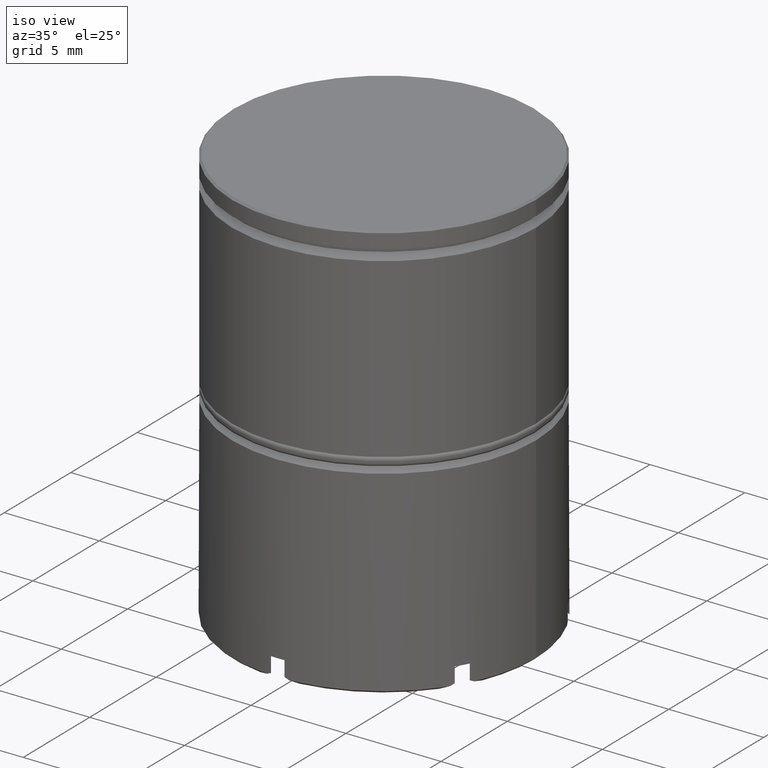
[diagram: clean part render]
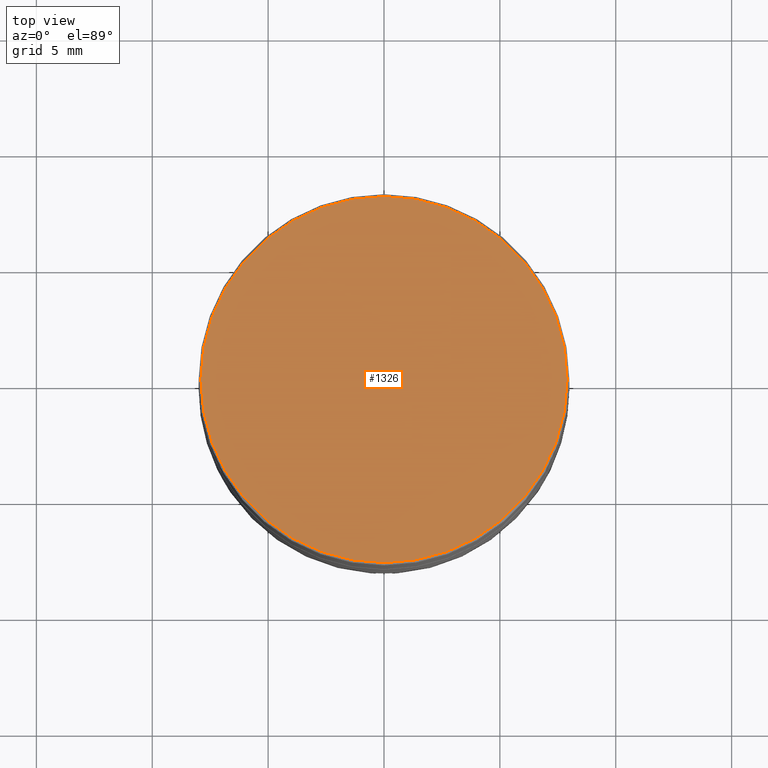
[diagram: tour spotlight — one face highlighted and labeled with its STEP entity id]
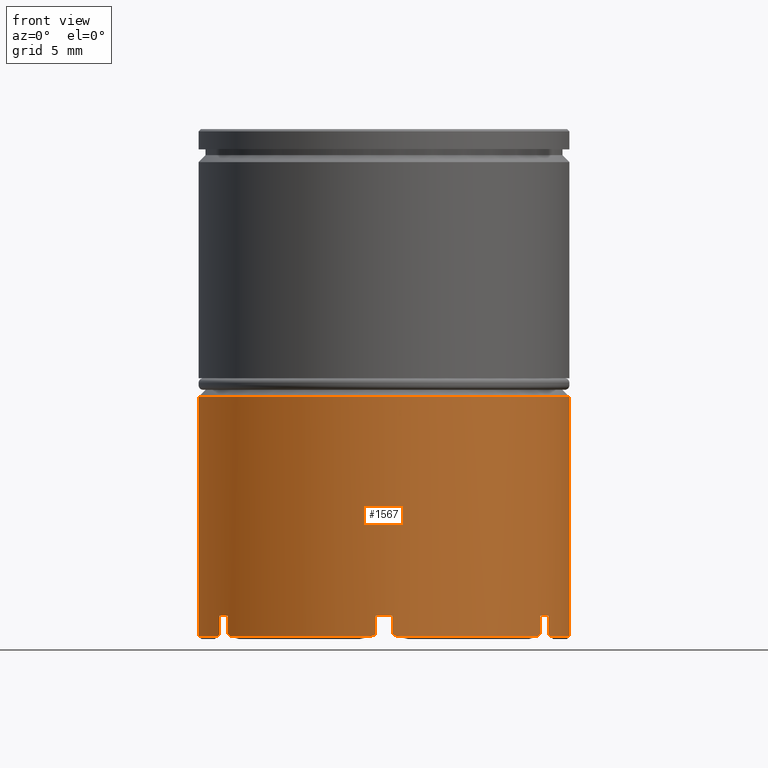
[diagram: tour spotlight — one face highlighted and labeled with its STEP entity id]
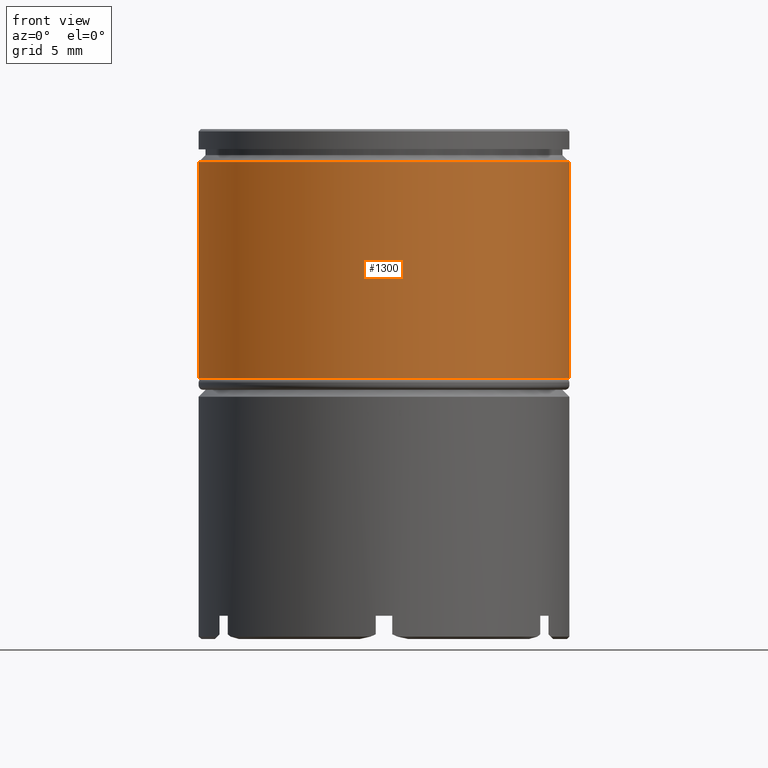
[diagram: tour spotlight — one face highlighted and labeled with its STEP entity id]
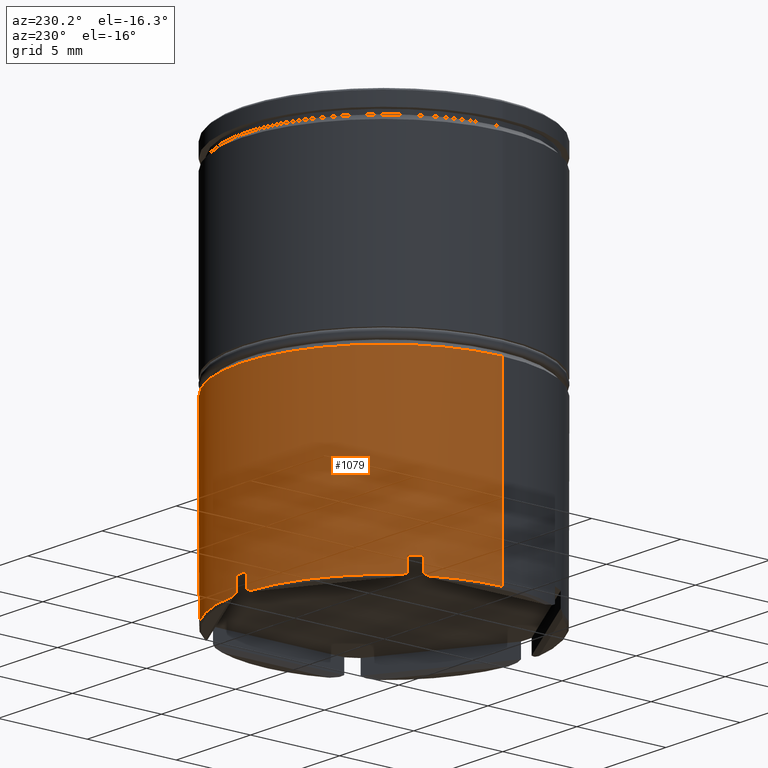
[diagram: tour spotlight — one face highlighted and labeled with its STEP entity id]
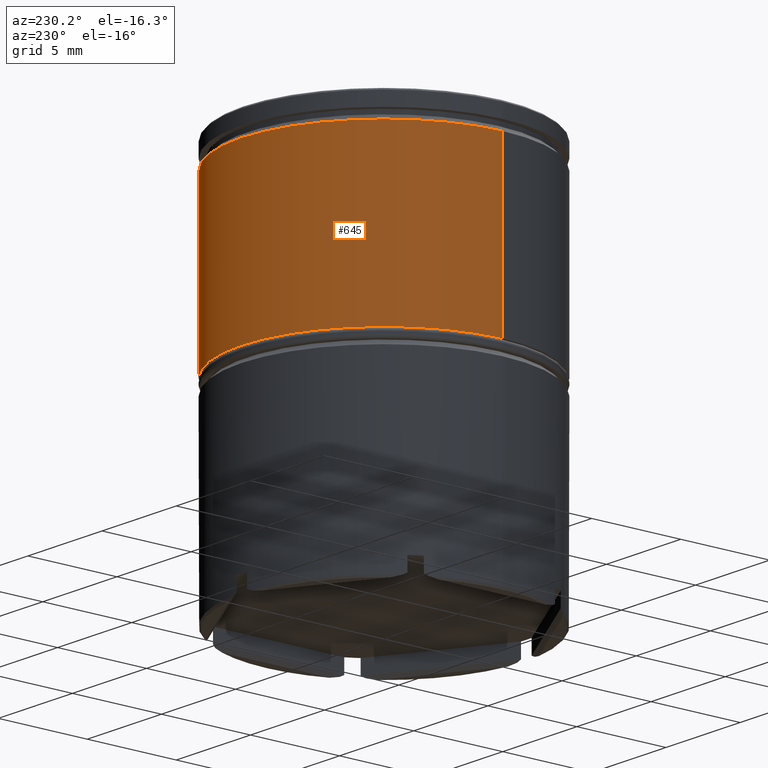
[diagram: tour spotlight — one face highlighted and labeled with its STEP entity id]
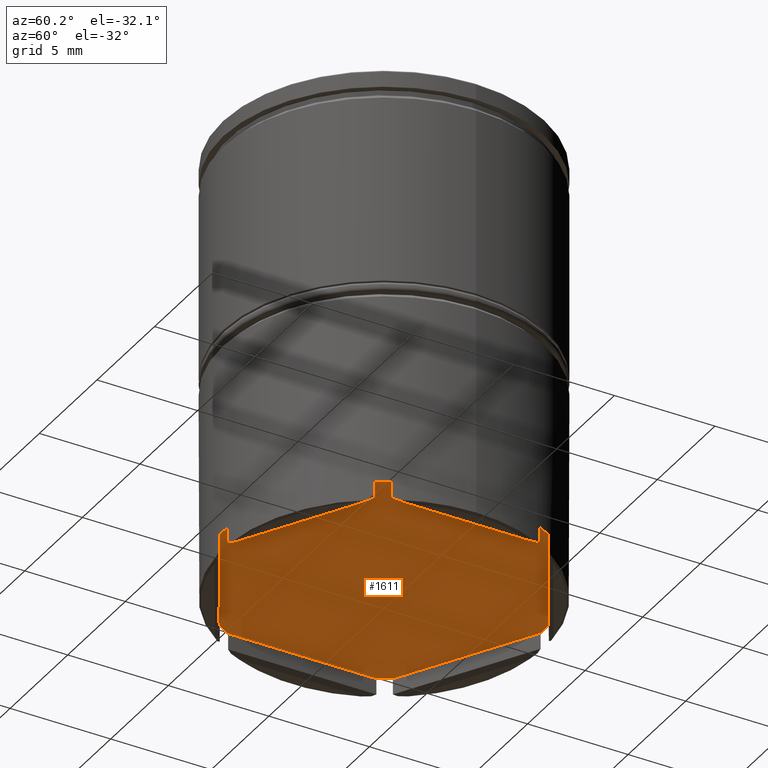
[diagram: tour spotlight — one face highlighted and labeled with its STEP entity id]
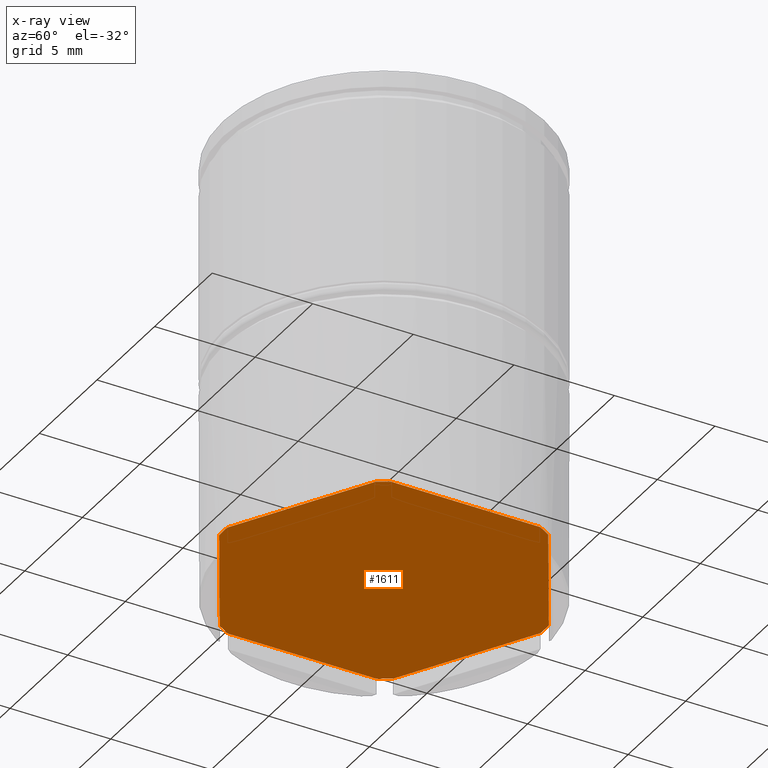
[diagram: x-ray of the same camera — body ghosted, this tour face saturated]
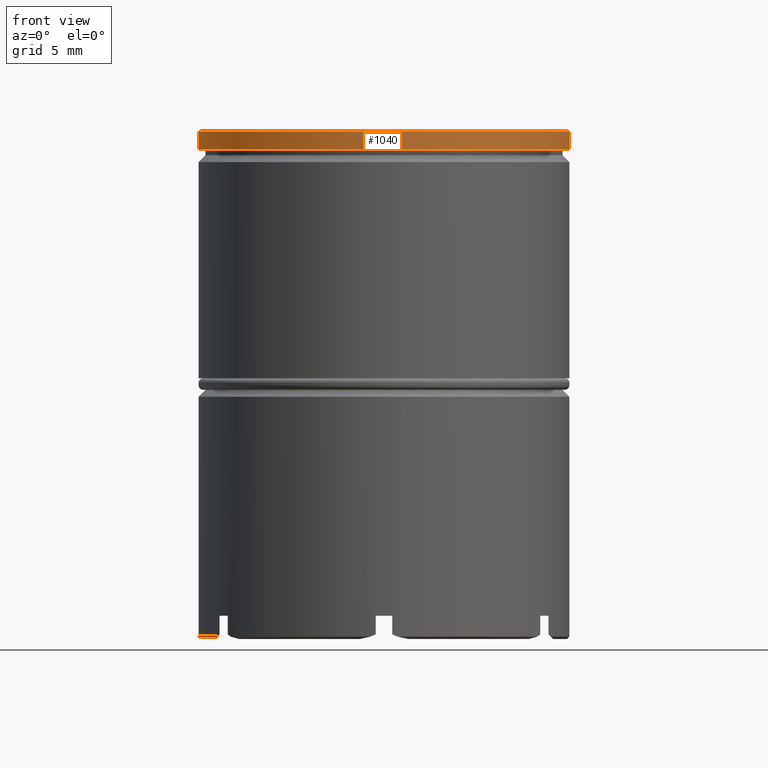
[diagram: tour spotlight — one face highlighted and labeled with its STEP entity id]
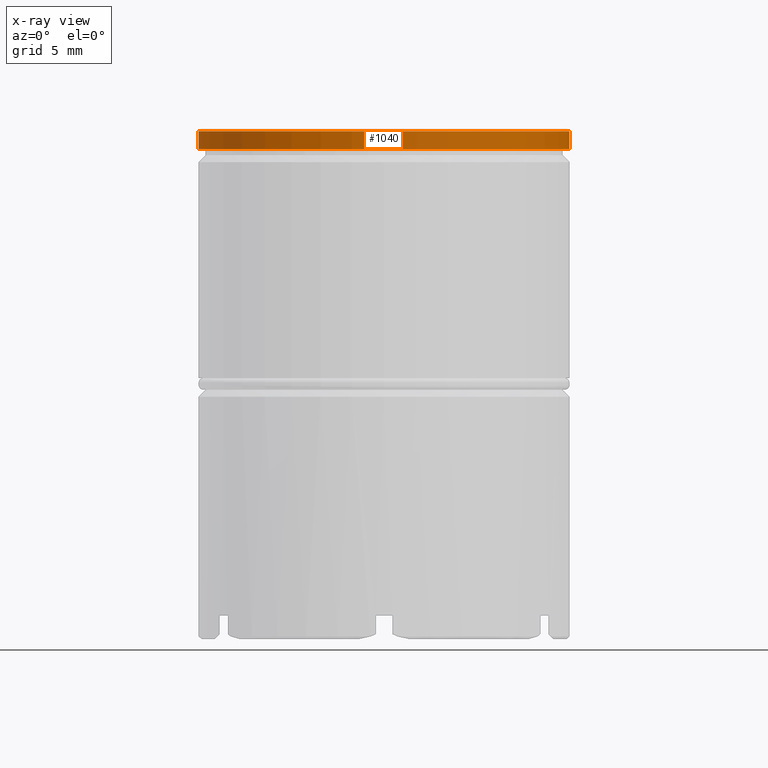
[diagram: x-ray of the same camera — body ghosted, this tour face saturated]
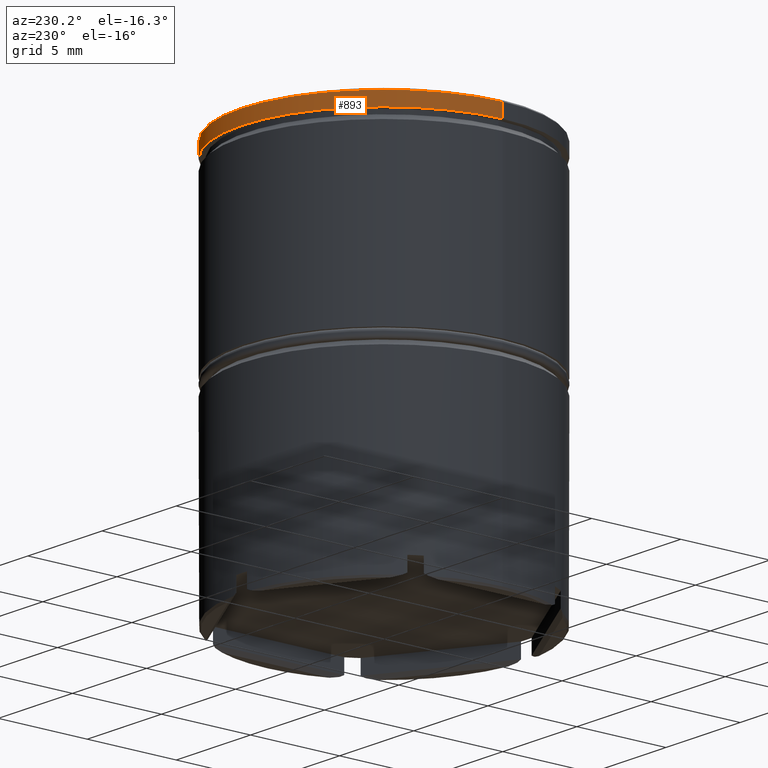
[diagram: tour spotlight — one face highlighted and labeled with its STEP entity id]
A machine part: a face-by-face anatomy tour. The part has 53 B-rep faces; the first image is the clean iso view, then the 8 largest visible faces are spotlighted one at a time (largest first), each with its STEP entity span.

Face 1 — top view, entity #1326. In plain terms, the highlighted planar face has unit normal (0, -0, 1).
Definition (entity closure, byte-faithful):
#78 = CIRCLE ( 'NONE', #396, 7.900000000000003908 ) ;
#207 = EDGE_CURVE ( 'NONE', #229, #527, #949, .T. ) ;
#226 = FACE_OUTER_BOUND ( 'NONE', #1034, .T. ) ;
#229 = VERTEX_POINT ( 'NONE', #666 ) ;
#244 = CARTESIAN_POINT ( 'NONE',  ( 0.000000000000000000, 0.000000000000000000, 0.000000000000000000 ) ) ;
#396 = AXIS2_PLACEMENT_3D ( 'NONE', #1103, #881, #1599 ) ;
#477 = DIRECTION ( 'NONE',  ( 0.000000000000000000, -0.000000000000000000, 1.000000000000000000 ) ) ;
#527 = VERTEX_POINT ( 'NONE', #677 ) ;
#585 = AXIS2_PLACEMENT_3D ( 'NONE', #244, #477, #1509 ) ;
#642 = ORIENTED_EDGE ( 'NONE', *, *, #207, .T. ) ;
#666 = CARTESIAN_POINT ( 'NONE',  ( -7.900000000000003908, 0.000000000000000000, 0.000000000000000000 ) ) ;
#674 = DIRECTION ( 'NONE',  ( 1.000000000000000000, 0.000000000000000000, 0.000000000000000000 ) ) ;
#677 = CARTESIAN_POINT ( 'NONE',  ( 7.900000000000003908, 9.735942053221460844E-16, 0.000000000000000000 ) ) ;
#730 = ORIENTED_EDGE ( 'NONE', *, *, #1038, .T. ) ;
#881 = DIRECTION ( 'NONE',  ( -0.000000000000000000, -0.000000000000000000, 1.000000000000000000 ) ) ;
#949 = CIRCLE ( 'NONE', #997, 7.900000000000003908 ) ;
#997 = AXIS2_PLACEMENT_3D ( 'NONE', #1288, #1438, #674 ) ;
#1034 = EDGE_LOOP ( 'NONE', ( #642, #730 ) ) ;
#1038 = EDGE_CURVE ( 'NONE', #527, #229, #78, .T. ) ;
#1103 = CARTESIAN_POINT ( 'NONE',  ( 0.000000000000000000, 0.000000000000000000, 0.000000000000000000 ) ) ;
#1288 = CARTESIAN_POINT ( 'NONE',  ( 0.000000000000000000, 0.000000000000000000, 0.000000000000000000 ) ) ;
#1326 = ADVANCED_FACE ( 'NONE', ( #226 ), #1604, .T. ) ;
#1438 = DIRECTION ( 'NONE',  ( -0.000000000000000000, -0.000000000000000000, 1.000000000000000000 ) ) ;
#1509 = DIRECTION ( 'NONE',  ( 1.000000000000000000, 0.000000000000000000, 0.000000000000000000 ) ) ;
#1599 = DIRECTION ( 'NONE',  ( 1.000000000000000000, 0.000000000000000000, 0.000000000000000000 ) ) ;
#1604 = PLANE ( 'NONE',  #585 ) ;

Face 2 — front view, entity #1567. In plain terms, the highlighted cylindrical surface (partial cylindrical patch) has radius 8 mm, axis along (-0, -0, 1).
Definition (entity closure, byte-faithful):
#9 = CARTESIAN_POINT ( 'NONE',  ( -0.3574305019310940468, -7.992011225986188627, -20.99999999999999645 ) ) ;
#17 = VERTEX_POINT ( 'NONE', #1254 ) ;
#20 = ORIENTED_EDGE ( 'NONE', *, *, #614, .T. ) ;
#29 = CARTESIAN_POINT ( 'NONE',  ( 6.619933774108296198, -4.491823329831693634, -21.90000000000000213 ) ) ;
#36 = ORIENTED_EDGE ( 'NONE', *, *, #197, .F. ) ;
#38 = CARTESIAN_POINT ( 'NONE',  ( 6.742569498068905709, -4.305549507752852278, -21.80000000000000426 ) ) ;
#40 = VERTEX_POINT ( 'NONE', #490 ) ;
#41 = CARTESIAN_POINT ( 'NONE',  ( 8.000000000000000000, 0.000000000000000000, -11.54999999999999893 ) ) ;
#45 = DIRECTION ( 'NONE',  ( -1.000000000000000000, -1.243449787580175325E-14, 0.000000000000000000 ) ) ;
#51 = LINE ( 'NONE', #1574, #230 ) ;
#70 = DIRECTION ( 'NONE',  ( 0.000000000000000000, 0.000000000000000000, -1.000000000000000000 ) ) ;
#85 = ORIENTED_EDGE ( 'NONE', *, *, #1157, .F. ) ;
#87 = CARTESIAN_POINT ( 'NONE',  ( 0.000000000000000000, 0.000000000000000000, -11.54999999999999893 ) ) ;
#91 = ORIENTED_EDGE ( 'NONE', *, *, #835, .T. ) ;
#92 =( BOUNDED_CURVE ( )  B_SPLINE_CURVE ( 3, ( #111, #353, #1360, #1237 ),
 .UNSPECIFIED., .F., .T. ) 
 B_SPLINE_CURVE_WITH_KNOTS ( ( 4, 4 ),
 ( 2.662687568714984465, 2.690565841793531199 ),
 .UNSPECIFIED. ) 
 CURVE ( )  GEOMETRIC_REPRESENTATION_ITEM ( )  RATIONAL_B_SPLINE_CURVE ( ( 1.000000000000000000, 0.9999352345395148278, 0.9999352345395148278, 1.000000000000000000 ) ) 
 REPRESENTATION_ITEM ( '' )  );
#102 = VECTOR ( 'NONE', #1070, 1000.000000000000000 ) ;
#111 = CARTESIAN_POINT ( 'NONE',  ( 7.100000000000005862, -3.686461718233339901, -21.80000000000000782 ) ) ;
#118 = CARTESIAN_POINT ( 'NONE',  ( -7.100000000000004086, -3.686461718233344342, -20.99999999999999645 ) ) ;
#170 = VERTEX_POINT ( 'NONE', #38 ) ;
#197 = EDGE_CURVE ( 'NONE', #40, #1041, #1202, .T. ) ;
#200 = DIRECTION ( 'NONE',  ( -0.000000000000000000, -0.000000000000000000, 1.000000000000000000 ) ) ;
#205 = CYLINDRICAL_SURFACE ( 'NONE', #999, 8.000000000000000000 ) ;
#222 = ORIENTED_EDGE ( 'NONE', *, *, #1238, .T. ) ;
#224 = CARTESIAN_POINT ( 'NONE',  ( 7.100000000000005862, -3.686461718233339901, 0.000000000000000000 ) ) ;
#230 = VECTOR ( 'NONE', #200, 1000.000000000000000 ) ;
#247 = CARTESIAN_POINT ( 'NONE',  ( -6.742569498068910150, -4.305549507752845173, -21.80000000000000426 ) ) ;
#248 = EDGE_CURVE ( 'NONE', #1401, #534, #1169, .T. ) ;
#254 = EDGE_CURVE ( 'NONE', #970, #1408, #843, .T. ) ;
#268 = CARTESIAN_POINT ( 'NONE',  ( 8.000000000000000000, 0.000000000000000000, -21.90000000000000213 ) ) ;
#273 = VERTEX_POINT ( 'NONE', #815 ) ;
#276 = DIRECTION ( 'NONE',  ( -0.000000000000000000, -0.000000000000000000, 1.000000000000000000 ) ) ;
#291 = ORIENTED_EDGE ( 'NONE', *, *, #986, .F. ) ;
#304 = DIRECTION ( 'NONE',  ( -0.000000000000000000, -0.000000000000000000, 1.000000000000000000 ) ) ;
#306 = DIRECTION ( 'NONE',  ( -1.000000000000000000, 0.000000000000000000, 0.000000000000000000 ) ) ;
#316 = VECTOR ( 'NONE', #1080, 1000.000000000000000 ) ;
#319 =( BOUNDED_CURVE ( )  B_SPLINE_CURVE ( 3, ( #995, #651, #1246, #882 ),
 .UNSPECIFIED., .F., .T. ) 
 B_SPLINE_CURVE_WITH_KNOTS ( ( 4, 4 ),
 ( 3.592619465386055921, 3.620497738464601767 ),
 .UNSPECIFIED. ) 
 CURVE ( )  GEOMETRIC_REPRESENTATION_ITEM ( )  RATIONAL_B_SPLINE_CURVE ( ( 1.000000000000000000, 0.9999352345395148278, 0.9999352345395148278, 1.000000000000000000 ) ) 
 REPRESENTATION_ITEM ( '' )  );
#327 = VERTEX_POINT ( 'NONE', #1534 ) ;
#329 = CARTESIAN_POINT ( 'NONE',  ( 0.000000000000000000, 0.000000000000000000, -20.99999999999999645 ) ) ;
#334 = VERTEX_POINT ( 'NONE', #520 ) ;
#353 = CARTESIAN_POINT ( 'NONE',  ( 7.134258504904174458, -3.620481001923023801, -21.83425850490418085 ) ) ;
#359 = DIRECTION ( 'NONE',  ( -0.000000000000000000, -0.000000000000000000, 1.000000000000000000 ) ) ;
#369 = CARTESIAN_POINT ( 'NONE',  ( -6.661676551691630976, -4.430303897107400246, -21.86759399722601671 ) ) ;
#370 = VECTOR ( 'NONE', #969, 1000.000000000000000 ) ;
#373 = CIRCLE ( 'NONE', #1035, 8.000000000000000000 ) ;
#375 = CARTESIAN_POINT ( 'NONE',  ( 6.742569498068905709, -4.305549507752852278, 0.000000000000000000 ) ) ;
#413 = VERTEX_POINT ( 'NONE', #887 ) ;
#432 = CARTESIAN_POINT ( 'NONE',  ( 0.000000000000000000, 0.000000000000000000, -21.90000000000000213 ) ) ;
#434 = ORIENTED_EDGE ( 'NONE', *, *, #1006, .T. ) ;
#438 = DIRECTION ( 'NONE',  ( 1.000000000000000000, 0.000000000000000000, 0.000000000000000000 ) ) ;
#444 = VERTEX_POINT ( 'NONE', #9 ) ;
#445 = AXIS2_PLACEMENT_3D ( 'NONE', #817, #956, #932 ) ;
#446 = DIRECTION ( 'NONE',  ( -0.000000000000000000, -0.000000000000000000, 1.000000000000000000 ) ) ;
#459 = DIRECTION ( 'NONE',  ( -1.000000000000000000, 0.000000000000000000, 0.000000000000000000 ) ) ;
#467 = EDGE_CURVE ( 'NONE', #696, #327, #546, .T. ) ;
#482 = VERTEX_POINT ( 'NONE', #1308 ) ;
#490 = CARTESIAN_POINT ( 'NONE',  ( -6.742569498068910150, -4.305549507752845173, -21.80000000000000426 ) ) ;
#501 = EDGE_CURVE ( 'NONE', #17, #413, #51, .T. ) ;
#520 = CARTESIAN_POINT ( 'NONE',  ( -8.000000000000000000, 9.797174393178825657E-16, -21.90000000000000213 ) ) ;
#532 = CARTESIAN_POINT ( 'NONE',  ( -0.3574305019310979881, -7.992011225986190404, 0.000000000000000000 ) ) ;
#534 = VERTEX_POINT ( 'NONE', #41 ) ;
#535 = CARTESIAN_POINT ( 'NONE',  ( 7.100000000000005862, -3.686461718233339901, -21.80000000000000782 ) ) ;
#537 = EDGE_CURVE ( 'NONE', #334, #1404, #1239, .T. ) ;
#546 = LINE ( 'NONE', #1453, #316 ) ;
#556 = VECTOR ( 'NONE', #359, 1000.000000000000000 ) ;
#561 = ORIENTED_EDGE ( 'NONE', *, *, #248, .T. ) ;
#570 = ORIENTED_EDGE ( 'NONE', *, *, #1410, .T. ) ;
#575 = DIRECTION ( 'NONE',  ( -0.000000000000000000, -0.000000000000000000, 1.000000000000000000 ) ) ;
#602 =( BOUNDED_CURVE ( )  B_SPLINE_CURVE ( 3, ( #247, #1608, #369, #1628 ),
 .UNSPECIFIED., .F., .T. ) 
 B_SPLINE_CURVE_WITH_KNOTS ( ( 4, 4 ),
 ( 2.662687568714984909, 2.690565841793532975 ),
 .UNSPECIFIED. ) 
 CURVE ( )  GEOMETRIC_REPRESENTATION_ITEM ( )  RATIONAL_B_SPLINE_CURVE ( ( 1.000000000000000000, 0.9999352345395148278, 0.9999352345395148278, 1.000000000000000000 ) ) 
 REPRESENTATION_ITEM ( '' )  );
#608 = DIRECTION ( 'NONE',  ( -0.000000000000000000, -0.000000000000000000, 1.000000000000000000 ) ) ;
#614 = EDGE_CURVE ( 'NONE', #1404, #327, #319, .T. ) ;
#628 = CARTESIAN_POINT ( 'NONE',  ( 0.000000000000000000, 0.000000000000000000, -21.90000000000000213 ) ) ;
#651 = CARTESIAN_POINT ( 'NONE',  ( -7.167593997226015645, -3.554029177006384543, -21.86759399722601671 ) ) ;
#683 = CARTESIAN_POINT ( 'NONE',  ( -7.199999999999997513, -3.487119154832545753, -21.90000000000000213 ) ) ;
#693 = ORIENTED_EDGE ( 'NONE', *, *, #537, .T. ) ;
#696 = VERTEX_POINT ( 'NONE', #118 ) ;
#701 = EDGE_CURVE ( 'NONE', #444, #1068, #1402, .T. ) ;
#702 = ORIENTED_EDGE ( 'NONE', *, *, #938, .T. ) ;
#703 = CARTESIAN_POINT ( 'NONE',  ( 0.000000000000000000, 0.000000000000000000, -20.99999999999999645 ) ) ;
#713 = ORIENTED_EDGE ( 'NONE', *, *, #724, .T. ) ;
#724 = EDGE_CURVE ( 'NONE', #1138, #170, #934, .T. ) ;
#746 = EDGE_CURVE ( 'NONE', #1354, #273, #1320, .T. ) ;
#752 = CARTESIAN_POINT ( 'NONE',  ( 6.619933774108296198, -4.491823329831693634, -21.90000000000000213 ) ) ;
#758 = CARTESIAN_POINT ( 'NONE',  ( -8.000000000000000000, 9.797174393178825657E-16, 0.000000000000000000 ) ) ;
#760 = EDGE_LOOP ( 'NONE', ( #1318, #693, #20, #942, #1005, #36, #702, #1422, #1306, #1146, #1236, #930, #1284, #570, #713, #85, #1594, #291, #434, #222, #561, #91 ) ) ;
#772 = CARTESIAN_POINT ( 'NONE',  ( -0.5059174455343968813, -7.984333074113772355, -21.86759399722601671 ) ) ;
#777 =( BOUNDED_CURVE ( )  B_SPLINE_CURVE ( 3, ( #1501, #878, #1375, #1257 ),
 .UNSPECIFIED., .F., .T. ) 
 B_SPLINE_CURVE_WITH_KNOTS ( ( 4, 4 ),
 ( 2.662687568714985353, 2.690565841793532531 ),
 .UNSPECIFIED. ) 
 CURVE ( )  GEOMETRIC_REPRESENTATION_ITEM ( )  RATIONAL_B_SPLINE_CURVE ( ( 1.000000000000000000, 0.9999352345395148278, 0.9999352345395148278, 1.000000000000000000 ) ) 
 REPRESENTATION_ITEM ( '' )  );
#779 = DIRECTION ( 'NONE',  ( -0.000000000000000000, -0.000000000000000000, 1.000000000000000000 ) ) ;
#807 = CARTESIAN_POINT ( 'NONE',  ( 0.000000000000000000, 0.000000000000000000, -21.90000000000000213 ) ) ;
#813 = VERTEX_POINT ( 'NONE', #1423 ) ;
#815 = CARTESIAN_POINT ( 'NONE',  ( -0.5800662258917183012, -7.978942484664227841, -21.90000000000000213 ) ) ;
#817 = CARTESIAN_POINT ( 'NONE',  ( 0.000000000000000000, 0.000000000000000000, -21.90000000000000213 ) ) ;
#835 = EDGE_CURVE ( 'NONE', #534, #482, #1448, .T. ) ;
#843 = CIRCLE ( 'NONE', #1415, 8.000000000000000000 ) ;
#846 = CIRCLE ( 'NONE', #870, 8.000000000000000000 ) ;
#858 = CARTESIAN_POINT ( 'NONE',  ( -0.3574305019310979881, -7.992011225986190404, -21.80000000000000426 ) ) ;
#866 = CARTESIAN_POINT ( 'NONE',  ( -0.5800662258917183012, -7.978942484664227841, -21.90000000000000213 ) ) ;
#870 = AXIS2_PLACEMENT_3D ( 'NONE', #329, #1461, #459 ) ;
#871 = CARTESIAN_POINT ( 'NONE',  ( -6.619933774108292646, -4.491823329831698075, -21.90000000000000213 ) ) ;
#878 = CARTESIAN_POINT ( 'NONE',  ( 0.4317007308678199595, -7.988689603373717141, -21.83425850490418085 ) ) ;
#882 = CARTESIAN_POINT ( 'NONE',  ( -7.100000000000004086, -3.686461718233344342, -21.80000000000000782 ) ) ;
#887 = CARTESIAN_POINT ( 'NONE',  ( 0.3574305019310975440, -7.992011225986188627, -20.99999999999999645 ) ) ;
#889 = CARTESIAN_POINT ( 'NONE',  ( -0.3574305019310979881, -7.992011225986190404, -21.80000000000000426 ) ) ;
#903 = EDGE_CURVE ( 'NONE', #696, #1041, #846, .T. ) ;
#916 = CARTESIAN_POINT ( 'NONE',  ( 6.661676551691631865, -4.430303897107397582, -21.86759399722601671 ) ) ;
#917 = DIRECTION ( 'NONE',  ( -0.000000000000000000, -0.000000000000000000, 1.000000000000000000 ) ) ;
#926 = AXIS2_PLACEMENT_3D ( 'NONE', #807, #779, #1154 ) ;
#930 = ORIENTED_EDGE ( 'NONE', *, *, #501, .F. ) ;
#931 = CARTESIAN_POINT ( 'NONE',  ( 7.100000000000005862, -3.686461718233339901, -20.99999999999999645 ) ) ;
#932 = DIRECTION ( 'NONE',  ( -1.000000000000000000, 0.000000000000000000, 0.000000000000000000 ) ) ;
#934 =( BOUNDED_CURVE ( )  B_SPLINE_CURVE ( 3, ( #29, #916, #1311, #1530 ),
 .UNSPECIFIED., .F., .T. ) 
 B_SPLINE_CURVE_WITH_KNOTS ( ( 4, 4 ),
 ( 3.592619465386054589, 3.620497738464601323 ),
 .UNSPECIFIED. ) 
 CURVE ( )  GEOMETRIC_REPRESENTATION_ITEM ( )  RATIONAL_B_SPLINE_CURVE ( ( 1.000000000000000000, 0.9999352345395148278, 0.9999352345395148278, 1.000000000000000000 ) ) 
 REPRESENTATION_ITEM ( '' )  );
#938 = EDGE_CURVE ( 'NONE', #40, #1354, #602, .T. ) ;
#942 = ORIENTED_EDGE ( 'NONE', *, *, #467, .F. ) ;
#956 = DIRECTION ( 'NONE',  ( -0.000000000000000000, -0.000000000000000000, 1.000000000000000000 ) ) ;
#969 = DIRECTION ( 'NONE',  ( 0.000000000000000000, 0.000000000000000000, -1.000000000000000000 ) ) ;
#970 = VERTEX_POINT ( 'NONE', #1120 ) ;
#979 = LINE ( 'NONE', #224, #556 ) ;
#986 = EDGE_CURVE ( 'NONE', #1536, #1408, #979, .T. ) ;
#987 = DIRECTION ( 'NONE',  ( -1.000000000000000000, 3.552713678800500929E-15, 0.000000000000000000 ) ) ;
#995 = CARTESIAN_POINT ( 'NONE',  ( -7.199999999999997513, -3.487119154832545753, -21.90000000000000213 ) ) ;
#999 = AXIS2_PLACEMENT_3D ( 'NONE', #1580, #575, #438 ) ;
#1005 = ORIENTED_EDGE ( 'NONE', *, *, #903, .T. ) ;
#1006 = EDGE_CURVE ( 'NONE', #1536, #1414, #92, .T. ) ;
#1008 = CARTESIAN_POINT ( 'NONE',  ( -0.4317007308678221800, -7.988689603373718917, -21.83425850490418085 ) ) ;
#1013 = CARTESIAN_POINT ( 'NONE',  ( -6.742569498068911038, -4.305549507752841620, -20.99999999999999645 ) ) ;
#1024 = VECTOR ( 'NONE', #276, 1000.000000000000000 ) ;
#1035 = AXIS2_PLACEMENT_3D ( 'NONE', #703, #446, #306 ) ;
#1036 = EDGE_CURVE ( 'NONE', #273, #1068, #1176, .T. ) ;
#1041 = VERTEX_POINT ( 'NONE', #1013 ) ;
#1045 = CARTESIAN_POINT ( 'NONE',  ( 8.000000000000000000, 0.000000000000000000, 0.000000000000000000 ) ) ;
#1064 = DIRECTION ( 'NONE',  ( -1.000000000000000000, 0.000000000000000000, 0.000000000000000000 ) ) ;
#1068 = VERTEX_POINT ( 'NONE', #889 ) ;
#1070 = DIRECTION ( 'NONE',  ( 0.000000000000000000, 0.000000000000000000, -1.000000000000000000 ) ) ;
#1080 = DIRECTION ( 'NONE',  ( 0.000000000000000000, 0.000000000000000000, -1.000000000000000000 ) ) ;
#1120 = CARTESIAN_POINT ( 'NONE',  ( 6.742569498068905709, -4.305549507752848726, -20.99999999999999645 ) ) ;
#1137 = CIRCLE ( 'NONE', #1271, 8.000000000000000000 ) ;
#1138 = VERTEX_POINT ( 'NONE', #752 ) ;
#1146 = ORIENTED_EDGE ( 'NONE', *, *, #701, .F. ) ;
#1154 = DIRECTION ( 'NONE',  ( -1.000000000000000000, 0.000000000000000000, 0.000000000000000000 ) ) ;
#1157 = EDGE_CURVE ( 'NONE', #970, #170, #1475, .T. ) ;
#1169 = LINE ( 'NONE', #1045, #1189 ) ;
#1176 =( BOUNDED_CURVE ( )  B_SPLINE_CURVE ( 3, ( #866, #772, #1008, #858 ),
 .UNSPECIFIED., .F., .T. ) 
 B_SPLINE_CURVE_WITH_KNOTS ( ( 4, 4 ),
 ( 3.592619465386053257, 3.620497738464601767 ),
 .UNSPECIFIED. ) 
 CURVE ( )  GEOMETRIC_REPRESENTATION_ITEM ( )  RATIONAL_B_SPLINE_CURVE ( ( 1.000000000000000000, 0.9999352345395148278, 0.9999352345395148278, 1.000000000000000000 ) ) 
 REPRESENTATION_ITEM ( '' )  );
#1189 = VECTOR ( 'NONE', #917, 1000.000000000000000 ) ;
#1202 = LINE ( 'NONE', #1538, #1024 ) ;
#1235 = DIRECTION ( 'NONE',  ( -0.000000000000000000, -0.000000000000000000, 1.000000000000000000 ) ) ;
#1236 = ORIENTED_EDGE ( 'NONE', *, *, #1613, .T. ) ;
#1237 = CARTESIAN_POINT ( 'NONE',  ( 7.200000000000001066, -3.487119154832535983, -21.90000000000000213 ) ) ;
#1238 = EDGE_CURVE ( 'NONE', #1414, #1401, #1137, .T. ) ;
#1239 = CIRCLE ( 'NONE', #445, 8.000000000000000000 ) ;
#1246 = CARTESIAN_POINT ( 'NONE',  ( -7.134258504904173570, -3.620481001923025133, -21.83425850490418085 ) ) ;
#1254 = CARTESIAN_POINT ( 'NONE',  ( 0.3574305019310988207, -7.992011225986190404, -21.80000000000000426 ) ) ;
#1257 = CARTESIAN_POINT ( 'NONE',  ( 0.5800662258917104186, -7.978942484664226065, -21.90000000000000213 ) ) ;
#1264 = AXIS2_PLACEMENT_3D ( 'NONE', #432, #1307, #1064 ) ;
#1268 = AXIS2_PLACEMENT_3D ( 'NONE', #87, #70, #1321 ) ;
#1271 = AXIS2_PLACEMENT_3D ( 'NONE', #628, #1235, #987 ) ;
#1279 = EDGE_CURVE ( 'NONE', #334, #482, #1482, .T. ) ;
#1284 = ORIENTED_EDGE ( 'NONE', *, *, #1358, .T. ) ;
#1301 = CARTESIAN_POINT ( 'NONE',  ( 7.200000000000001066, -3.487119154832535983, -21.90000000000000213 ) ) ;
#1306 = ORIENTED_EDGE ( 'NONE', *, *, #1036, .T. ) ;
#1307 = DIRECTION ( 'NONE',  ( -0.000000000000000000, -0.000000000000000000, 1.000000000000000000 ) ) ;
#1308 = CARTESIAN_POINT ( 'NONE',  ( -8.000000000000000000, 9.797174393178825657E-16, -11.54999999999999893 ) ) ;
#1311 = CARTESIAN_POINT ( 'NONE',  ( 6.702557774036359994, -4.368208601450699113, -21.83425850490418085 ) ) ;
#1318 = ORIENTED_EDGE ( 'NONE', *, *, #1279, .F. ) ;
#1320 = CIRCLE ( 'NONE', #926, 8.000000000000000000 ) ;
#1321 = DIRECTION ( 'NONE',  ( 1.000000000000000000, 0.000000000000000000, 0.000000000000000000 ) ) ;
#1345 = FACE_OUTER_BOUND ( 'NONE', #760, .T. ) ;
#1354 = VERTEX_POINT ( 'NONE', #871 ) ;
#1358 = EDGE_CURVE ( 'NONE', #17, #813, #777, .T. ) ;
#1360 = CARTESIAN_POINT ( 'NONE',  ( 7.167593997226017422, -3.554029177006380547, -21.86759399722601671 ) ) ;
#1375 = CARTESIAN_POINT ( 'NONE',  ( 0.5059174455343912191, -7.984333074113772355, -21.86759399722602026 ) ) ;
#1401 = VERTEX_POINT ( 'NONE', #268 ) ;
#1402 = LINE ( 'NONE', #532, #102 ) ;
#1404 = VERTEX_POINT ( 'NONE', #683 ) ;
#1408 = VERTEX_POINT ( 'NONE', #931 ) ;
#1410 = EDGE_CURVE ( 'NONE', #813, #1138, #1420, .T. ) ;
#1414 = VERTEX_POINT ( 'NONE', #1301 ) ;
#1415 = AXIS2_PLACEMENT_3D ( 'NONE', #1545, #304, #45 ) ;
#1420 = CIRCLE ( 'NONE', #1264, 8.000000000000000000 ) ;
#1422 = ORIENTED_EDGE ( 'NONE', *, *, #746, .T. ) ;
#1423 = CARTESIAN_POINT ( 'NONE',  ( 0.5800662258917104186, -7.978942484664226065, -21.90000000000000213 ) ) ;
#1448 = CIRCLE ( 'NONE', #1268, 8.000000000000000000 ) ;
#1453 = CARTESIAN_POINT ( 'NONE',  ( -7.100000000000004086, -3.686461718233344342, 0.000000000000000000 ) ) ;
#1461 = DIRECTION ( 'NONE',  ( -0.000000000000000000, -0.000000000000000000, 1.000000000000000000 ) ) ;
#1468 = VECTOR ( 'NONE', #608, 1000.000000000000000 ) ;
#1475 = LINE ( 'NONE', #375, #370 ) ;
#1482 = LINE ( 'NONE', #758, #1468 ) ;
#1501 = CARTESIAN_POINT ( 'NONE',  ( 0.3574305019310988207, -7.992011225986190404, -21.80000000000000426 ) ) ;
#1530 = CARTESIAN_POINT ( 'NONE',  ( 6.742569498068905709, -4.305549507752852278, -21.80000000000000426 ) ) ;
#1534 = CARTESIAN_POINT ( 'NONE',  ( -7.100000000000004086, -3.686461718233344342, -21.80000000000000782 ) ) ;
#1536 = VERTEX_POINT ( 'NONE', #535 ) ;
#1538 = CARTESIAN_POINT ( 'NONE',  ( -6.742569498068910150, -4.305549507752845173, 0.000000000000000000 ) ) ;
#1545 = CARTESIAN_POINT ( 'NONE',  ( 0.000000000000000000, 0.000000000000000000, -20.99999999999999645 ) ) ;
#1567 = ADVANCED_FACE ( 'NONE', ( #1345 ), #205, .T. ) ;
#1574 = CARTESIAN_POINT ( 'NONE',  ( 0.3574305019310988207, -7.992011225986190404, 0.000000000000000000 ) ) ;
#1580 = CARTESIAN_POINT ( 'NONE',  ( 0.000000000000000000, 0.000000000000000000, 0.000000000000000000 ) ) ;
#1594 = ORIENTED_EDGE ( 'NONE', *, *, #254, .T. ) ;
#1608 = CARTESIAN_POINT ( 'NONE',  ( -6.702557774036360883, -4.368208601450698225, -21.83425850490417730 ) ) ;
#1613 = EDGE_CURVE ( 'NONE', #444, #413, #373, .T. ) ;
#1628 = CARTESIAN_POINT ( 'NONE',  ( -6.619933774108292646, -4.491823329831698075, -21.90000000000000213 ) ) ;

Face 3 — front view, entity #1300. In plain terms, the highlighted cylindrical surface (partial cylindrical patch) has radius 8 mm, axis along (-0, -0, 1).
Definition (entity closure, byte-faithful):
#8 = DIRECTION ( 'NONE',  ( -0.000000000000000000, -0.000000000000000000, 1.000000000000000000 ) ) ;
#49 = CARTESIAN_POINT ( 'NONE',  ( 8.000000000000000000, 0.000000000000000000, -1.425000000000003597 ) ) ;
#101 = DIRECTION ( 'NONE',  ( -0.000000000000000000, -0.000000000000000000, 1.000000000000000000 ) ) ;
#159 = CIRCLE ( 'NONE', #231, 8.000000000000000000 ) ;
#190 = CARTESIAN_POINT ( 'NONE',  ( -8.000000000000000000, 9.797174393178825657E-16, -10.75000000000000000 ) ) ;
#195 = VERTEX_POINT ( 'NONE', #190 ) ;
#202 = CARTESIAN_POINT ( 'NONE',  ( 0.000000000000000000, 0.000000000000000000, -1.425000000000003597 ) ) ;
#231 = AXIS2_PLACEMENT_3D ( 'NONE', #202, #822, #706 ) ;
#271 = EDGE_CURVE ( 'NONE', #195, #1554, #420, .T. ) ;
#374 = CYLINDRICAL_SURFACE ( 'NONE', #635, 8.000000000000000000 ) ;
#420 = LINE ( 'NONE', #1555, #443 ) ;
#423 = VECTOR ( 'NONE', #1250, 1000.000000000000000 ) ;
#443 = VECTOR ( 'NONE', #928, 1000.000000000000000 ) ;
#460 = ORIENTED_EDGE ( 'NONE', *, *, #864, .T. ) ;
#635 = AXIS2_PLACEMENT_3D ( 'NONE', #985, #8, #1125 ) ;
#706 = DIRECTION ( 'NONE',  ( 1.000000000000000000, 0.000000000000000000, 0.000000000000000000 ) ) ;
#806 = ORIENTED_EDGE ( 'NONE', *, *, #1059, .T. ) ;
#822 = DIRECTION ( 'NONE',  ( 0.000000000000000000, 0.000000000000000000, -1.000000000000000000 ) ) ;
#862 = CARTESIAN_POINT ( 'NONE',  ( 8.000000000000000000, 0.000000000000000000, -10.75000000000000000 ) ) ;
#864 = EDGE_CURVE ( 'NONE', #1484, #1554, #159, .T. ) ;
#928 = DIRECTION ( 'NONE',  ( -0.000000000000000000, -0.000000000000000000, 1.000000000000000000 ) ) ;
#985 = CARTESIAN_POINT ( 'NONE',  ( 0.000000000000000000, 0.000000000000000000, 0.000000000000000000 ) ) ;
#1001 = AXIS2_PLACEMENT_3D ( 'NONE', #1512, #101, #1129 ) ;
#1053 = CARTESIAN_POINT ( 'NONE',  ( -8.000000000000000000, 9.797174393178825657E-16, -1.425000000000003597 ) ) ;
#1059 = EDGE_CURVE ( 'NONE', #195, #1247, #1192, .T. ) ;
#1093 = EDGE_LOOP ( 'NONE', ( #1357, #806, #1338, #460 ) ) ;
#1125 = DIRECTION ( 'NONE',  ( 1.000000000000000000, 0.000000000000000000, 0.000000000000000000 ) ) ;
#1129 = DIRECTION ( 'NONE',  ( 1.000000000000000000, 0.000000000000000000, 0.000000000000000000 ) ) ;
#1160 = EDGE_CURVE ( 'NONE', #1247, #1484, #1347, .T. ) ;
#1192 = CIRCLE ( 'NONE', #1001, 8.000000000000000000 ) ;
#1228 = CARTESIAN_POINT ( 'NONE',  ( 8.000000000000000000, 0.000000000000000000, 0.000000000000000000 ) ) ;
#1247 = VERTEX_POINT ( 'NONE', #862 ) ;
#1250 = DIRECTION ( 'NONE',  ( -0.000000000000000000, -0.000000000000000000, 1.000000000000000000 ) ) ;
#1300 = ADVANCED_FACE ( 'NONE', ( #1517 ), #374, .T. ) ;
#1338 = ORIENTED_EDGE ( 'NONE', *, *, #1160, .T. ) ;
#1347 = LINE ( 'NONE', #1228, #423 ) ;
#1357 = ORIENTED_EDGE ( 'NONE', *, *, #271, .F. ) ;
#1484 = VERTEX_POINT ( 'NONE', #49 ) ;
#1512 = CARTESIAN_POINT ( 'NONE',  ( 0.000000000000000000, 0.000000000000000000, -10.75000000000000000 ) ) ;
#1517 = FACE_OUTER_BOUND ( 'NONE', #1093, .T. ) ;
#1554 = VERTEX_POINT ( 'NONE', #1053 ) ;
#1555 = CARTESIAN_POINT ( 'NONE',  ( -8.000000000000000000, 9.797174393178825657E-16, 0.000000000000000000 ) ) ;

Face 4 — auxiliary view, entity #1079. In plain terms, the highlighted cylindrical surface (partial cylindrical patch) has radius 8 mm, axis along (-0, -0, 1).
Definition (entity closure, byte-faithful):
#4 = CYLINDRICAL_SURFACE ( 'NONE', #1218, 8.000000000000000000 ) ;
#11 = CARTESIAN_POINT ( 'NONE',  ( 6.619933774108291757, 4.491823329831700740, -21.90000000000000213 ) ) ;
#27 = ORIENTED_EDGE ( 'NONE', *, *, #1156, .T. ) ;
#41 = CARTESIAN_POINT ( 'NONE',  ( 8.000000000000000000, 0.000000000000000000, -11.54999999999999893 ) ) ;
#42 = VERTEX_POINT ( 'NONE', #756 ) ;
#43 = ORIENTED_EDGE ( 'NONE', *, *, #1089, .T. ) ;
#47 = ORIENTED_EDGE ( 'NONE', *, *, #601, .T. ) ;
#55 = EDGE_CURVE ( 'NONE', #1030, #637, #308, .T. ) ;
#59 = VERTEX_POINT ( 'NONE', #1131 ) ;
#63 = CARTESIAN_POINT ( 'NONE',  ( 0.000000000000000000, 0.000000000000000000, -20.99999999999999645 ) ) ;
#68 = DIRECTION ( 'NONE',  ( -0.000000000000000000, -0.000000000000000000, 1.000000000000000000 ) ) ;
#77 = VECTOR ( 'NONE', #68, 1000.000000000000000 ) ;
#84 = DIRECTION ( 'NONE',  ( -1.000000000000000000, -1.776356839400250465E-15, 0.000000000000000000 ) ) ;
#88 = ORIENTED_EDGE ( 'NONE', *, *, #847, .T. ) ;
#97 = CARTESIAN_POINT ( 'NONE',  ( -7.100000000000005862, 3.686461718233341678, -21.80000000000000782 ) ) ;
#127 = CARTESIAN_POINT ( 'NONE',  ( 6.742569498068909262, 4.305549507752845173, -21.80000000000000071 ) ) ;
#131 = CIRCLE ( 'NONE', #1058, 8.000000000000000000 ) ;
#140 = CARTESIAN_POINT ( 'NONE',  ( -6.619933774108297975, 4.491823329831691858, -21.90000000000000213 ) ) ;
#147 = DIRECTION ( 'NONE',  ( -1.000000000000000000, 0.000000000000000000, 0.000000000000000000 ) ) ;
#156 = EDGE_CURVE ( 'NONE', #586, #334, #922, .T. ) ;
#163 = CARTESIAN_POINT ( 'NONE',  ( 0.3574305019310944909, 7.992011225986190404, -21.80000000000000071 ) ) ;
#171 = ORIENTED_EDGE ( 'NONE', *, *, #983, .T. ) ;
#177 = EDGE_CURVE ( 'NONE', #687, #948, #436, .T. ) ;
#182 = EDGE_LOOP ( 'NONE', ( #1476, #246, #27, #1106, #853, #1087, #239, #1577, #836, #277, #47, #43, #816, #88, #1529, #980, #171, #457, #1232, #1609, #727, #1565 ) ) ;
#185 = CIRCLE ( 'NONE', #742, 8.000000000000000000 ) ;
#187 = AXIS2_PLACEMENT_3D ( 'NONE', #994, #1369, #480 ) ;
#213 = DIRECTION ( 'NONE',  ( -1.000000000000000000, 3.552713678800500929E-15, 0.000000000000000000 ) ) ;
#217 = CARTESIAN_POINT ( 'NONE',  ( 0.4317007308678149080, 7.988689603373718917, -21.83425850490418441 ) ) ;
#220 = VERTEX_POINT ( 'NONE', #429 ) ;
#239 = ORIENTED_EDGE ( 'NONE', *, *, #177, .F. ) ;
#240 = CARTESIAN_POINT ( 'NONE',  ( 7.200000000000000178, 3.487119154832540424, -21.90000000000000213 ) ) ;
#246 = ORIENTED_EDGE ( 'NONE', *, *, #1279, .T. ) ;
#248 = EDGE_CURVE ( 'NONE', #1401, #534, #1169, .T. ) ;
#268 = CARTESIAN_POINT ( 'NONE',  ( 8.000000000000000000, 0.000000000000000000, -21.90000000000000213 ) ) ;
#277 = ORIENTED_EDGE ( 'NONE', *, *, #1610, .T. ) ;
#295 = DIRECTION ( 'NONE',  ( -0.000000000000000000, -0.000000000000000000, 1.000000000000000000 ) ) ;
#296 = EDGE_CURVE ( 'NONE', #687, #827, #768, .T. ) ;
#308 =( BOUNDED_CURVE ( )  B_SPLINE_CURVE ( 3, ( #379, #774, #510, #395 ),
 .UNSPECIFIED., .F., .T. ) 
 B_SPLINE_CURVE_WITH_KNOTS ( ( 4, 4 ),
 ( 3.592619465386055033, 3.620497738464601323 ),
 .UNSPECIFIED. ) 
 CURVE ( )  GEOMETRIC_REPRESENTATION_ITEM ( )  RATIONAL_B_SPLINE_CURVE ( ( 1.000000000000000000, 0.9999352345395148278, 0.9999352345395148278, 1.000000000000000000 ) ) 
 REPRESENTATION_ITEM ( '' )  );
#312 = DIRECTION ( 'NONE',  ( 0.000000000000000000, 0.000000000000000000, -1.000000000000000000 ) ) ;
#315 = CARTESIAN_POINT ( 'NONE',  ( 6.742569498068909262, 4.305549507752845173, -21.80000000000000071 ) ) ;
#317 = LINE ( 'NONE', #1435, #77 ) ;
#334 = VERTEX_POINT ( 'NONE', #520 ) ;
#347 = VERTEX_POINT ( 'NONE', #163 ) ;
#357 = CARTESIAN_POINT ( 'NONE',  ( 0.3574305019310944909, 7.992011225986190404, -20.99999999999999645 ) ) ;
#366 = VECTOR ( 'NONE', #1283, 1000.000000000000000 ) ;
#371 = CARTESIAN_POINT ( 'NONE',  ( 0.000000000000000000, 0.000000000000000000, -21.90000000000000213 ) ) ;
#377 = CARTESIAN_POINT ( 'NONE',  ( 7.134258504904175346, 3.620481001923024689, -21.83425850490418085 ) ) ;
#379 = CARTESIAN_POINT ( 'NONE',  ( -6.619933774108297975, 4.491823329831691858, -21.90000000000000213 ) ) ;
#381 = VERTEX_POINT ( 'NONE', #1418 ) ;
#383 = CARTESIAN_POINT ( 'NONE',  ( -0.3574305019310984322, 7.992011225986190404, -21.80000000000000782 ) ) ;
#395 = CARTESIAN_POINT ( 'NONE',  ( -6.742569498068905709, 4.305549507752851390, -21.80000000000000782 ) ) ;
#417 = EDGE_CURVE ( 'NONE', #990, #827, #1270, .T. ) ;
#429 = CARTESIAN_POINT ( 'NONE',  ( -7.100000000000005862, 3.686461718233341678, -20.99999999999999645 ) ) ;
#435 = DIRECTION ( 'NONE',  ( -0.000000000000000000, -0.000000000000000000, 1.000000000000000000 ) ) ;
#436 = LINE ( 'NONE', #1322, #791 ) ;
#453 = EDGE_CURVE ( 'NONE', #1229, #347, #1039, .T. ) ;
#457 = ORIENTED_EDGE ( 'NONE', *, *, #55, .T. ) ;
#462 = CARTESIAN_POINT ( 'NONE',  ( -6.742569498068905709, 4.305549507752851390, -21.80000000000000782 ) ) ;
#466 = EDGE_CURVE ( 'NONE', #42, #220, #317, .T. ) ;
#471 = CARTESIAN_POINT ( 'NONE',  ( -6.742569498068905709, 4.305549507752851390, 0.000000000000000000 ) ) ;
#472 = AXIS2_PLACEMENT_3D ( 'NONE', #964, #435, #579 ) ;
#480 = DIRECTION ( 'NONE',  ( -1.000000000000000000, -1.776356839400250465E-15, 0.000000000000000000 ) ) ;
#481 =( BOUNDED_CURVE ( )  B_SPLINE_CURVE ( 3, ( #1003, #609, #217, #617 ),
 .UNSPECIFIED., .F., .T. ) 
 B_SPLINE_CURVE_WITH_KNOTS ( ( 4, 4 ),
 ( 3.592619465386054145, 3.620497738464602211 ),
 .UNSPECIFIED. ) 
 CURVE ( )  GEOMETRIC_REPRESENTATION_ITEM ( )  RATIONAL_B_SPLINE_CURVE ( ( 1.000000000000000000, 0.9999352345395148278, 0.9999352345395148278, 1.000000000000000000 ) ) 
 REPRESENTATION_ITEM ( '' )  );
#482 = VERTEX_POINT ( 'NONE', #1308 ) ;
#493 = CARTESIAN_POINT ( 'NONE',  ( 7.200000000000000178, 3.487119154832540424, -21.90000000000000213 ) ) ;
#499 = CIRCLE ( 'NONE', #714, 8.000000000000000000 ) ;
#510 = CARTESIAN_POINT ( 'NONE',  ( -6.702557774036359994, 4.368208601450696449, -21.83425850490418441 ) ) ;
#520 = CARTESIAN_POINT ( 'NONE',  ( -8.000000000000000000, 9.797174393178825657E-16, -21.90000000000000213 ) ) ;
#534 = VERTEX_POINT ( 'NONE', #41 ) ;
#566 = EDGE_CURVE ( 'NONE', #988, #381, #1315, .T. ) ;
#579 = DIRECTION ( 'NONE',  ( -1.000000000000000000, 1.154631945610162960E-14, 0.000000000000000000 ) ) ;
#586 = VERTEX_POINT ( 'NONE', #1206 ) ;
#601 = EDGE_CURVE ( 'NONE', #1081, #1272, #499, .T. ) ;
#608 = DIRECTION ( 'NONE',  ( -0.000000000000000000, -0.000000000000000000, 1.000000000000000000 ) ) ;
#609 = CARTESIAN_POINT ( 'NONE',  ( 0.5059174455343885546, 7.984333074113772355, -21.86759399722602026 ) ) ;
#617 = CARTESIAN_POINT ( 'NONE',  ( 0.3574305019310944909, 7.992011225986190404, -21.80000000000000071 ) ) ;
#637 = VERTEX_POINT ( 'NONE', #462 ) ;
#650 = DIRECTION ( 'NONE',  ( 1.000000000000000000, 0.000000000000000000, 0.000000000000000000 ) ) ;
#654 = CARTESIAN_POINT ( 'NONE',  ( 6.742569498068909262, 4.305549507752845173, 0.000000000000000000 ) ) ;
#661 =( BOUNDED_CURVE ( )  B_SPLINE_CURVE ( 3, ( #97, #1127, #1111, #1606 ),
 .UNSPECIFIED., .F., .T. ) 
 B_SPLINE_CURVE_WITH_KNOTS ( ( 4, 4 ),
 ( 2.662687568714984465, 2.690565841793530755 ),
 .UNSPECIFIED. ) 
 CURVE ( )  GEOMETRIC_REPRESENTATION_ITEM ( )  RATIONAL_B_SPLINE_CURVE ( ( 1.000000000000000000, 0.9999352345395148278, 0.9999352345395148278, 1.000000000000000000 ) ) 
 REPRESENTATION_ITEM ( '' )  );
#662 = VECTOR ( 'NONE', #1179, 1000.000000000000000 ) ;
#681 = CARTESIAN_POINT ( 'NONE',  ( 0.000000000000000000, 0.000000000000000000, -21.90000000000000213 ) ) ;
#687 = VERTEX_POINT ( 'NONE', #1253 ) ;
#689 = DIRECTION ( 'NONE',  ( -0.000000000000000000, -0.000000000000000000, 1.000000000000000000 ) ) ;
#698 = EDGE_CURVE ( 'NONE', #1401, #1335, #185, .T. ) ;
#714 = AXIS2_PLACEMENT_3D ( 'NONE', #371, #1141, #84 ) ;
#725 = CARTESIAN_POINT ( 'NONE',  ( 6.619933774108291757, 4.491823329831700740, -21.90000000000000213 ) ) ;
#726 = DIRECTION ( 'NONE',  ( 1.000000000000000000, 0.000000000000000000, 0.000000000000000000 ) ) ;
#727 = ORIENTED_EDGE ( 'NONE', *, *, #466, .F. ) ;
#732 = CARTESIAN_POINT ( 'NONE',  ( 0.5800662258917101965, 7.978942484664227841, -21.90000000000000213 ) ) ;
#742 = AXIS2_PLACEMENT_3D ( 'NONE', #773, #689, #147 ) ;
#744 = CARTESIAN_POINT ( 'NONE',  ( 7.167593997226018310, 3.554029177006382767, -21.86759399722601671 ) ) ;
#756 = CARTESIAN_POINT ( 'NONE',  ( -7.100000000000005862, 3.686461718233341678, -21.80000000000000782 ) ) ;
#758 = CARTESIAN_POINT ( 'NONE',  ( -8.000000000000000000, 9.797174393178825657E-16, 0.000000000000000000 ) ) ;
#761 = CARTESIAN_POINT ( 'NONE',  ( 7.100000000000005862, 3.686461718233341678, -21.80000000000000782 ) ) ;
#768 = CIRCLE ( 'NONE', #1359, 8.000000000000000000 ) ;
#773 = CARTESIAN_POINT ( 'NONE',  ( 0.000000000000000000, 0.000000000000000000, -21.90000000000000213 ) ) ;
#774 = CARTESIAN_POINT ( 'NONE',  ( -6.661676551691632753, 4.430303897107394029, -21.86759399722601671 ) ) ;
#791 = VECTOR ( 'NONE', #312, 1000.000000000000000 ) ;
#816 = ORIENTED_EDGE ( 'NONE', *, *, #453, .F. ) ;
#827 = VERTEX_POINT ( 'NONE', #1225 ) ;
#836 = ORIENTED_EDGE ( 'NONE', *, *, #417, .F. ) ;
#847 = EDGE_CURVE ( 'NONE', #1229, #381, #953, .T. ) ;
#849 = DIRECTION ( 'NONE',  ( 0.000000000000000000, 0.000000000000000000, -1.000000000000000000 ) ) ;
#853 = ORIENTED_EDGE ( 'NONE', *, *, #698, .T. ) ;
#912 = EDGE_CURVE ( 'NONE', #1074, #220, #131, .T. ) ;
#917 = DIRECTION ( 'NONE',  ( -0.000000000000000000, -0.000000000000000000, 1.000000000000000000 ) ) ;
#922 = CIRCLE ( 'NONE', #1524, 8.000000000000000000 ) ;
#929 = VECTOR ( 'NONE', #849, 1000.000000000000000 ) ;
#937 = DIRECTION ( 'NONE',  ( -1.000000000000000000, 2.664535259100375697E-15, 0.000000000000000000 ) ) ;
#941 = CARTESIAN_POINT ( 'NONE',  ( 0.3574305019310944909, 7.992011225986190404, 0.000000000000000000 ) ) ;
#948 = VERTEX_POINT ( 'NONE', #1385 ) ;
#952 = DIRECTION ( 'NONE',  ( -0.000000000000000000, -0.000000000000000000, 1.000000000000000000 ) ) ;
#953 = CIRCLE ( 'NONE', #472, 8.000000000000000000 ) ;
#964 = CARTESIAN_POINT ( 'NONE',  ( 0.000000000000000000, 0.000000000000000000, -20.99999999999999645 ) ) ;
#967 = CARTESIAN_POINT ( 'NONE',  ( 6.702557774036362659, 4.368208601450695561, -21.83425850490418441 ) ) ;
#980 = ORIENTED_EDGE ( 'NONE', *, *, #1346, .T. ) ;
#982 =( BOUNDED_CURVE ( )  B_SPLINE_CURVE ( 3, ( #240, #744, #377, #761 ),
 .UNSPECIFIED., .F., .T. ) 
 B_SPLINE_CURVE_WITH_KNOTS ( ( 4, 4 ),
 ( 3.592619465386055477, 3.620497738464601767 ),
 .UNSPECIFIED. ) 
 CURVE ( )  GEOMETRIC_REPRESENTATION_ITEM ( )  RATIONAL_B_SPLINE_CURVE ( ( 1.000000000000000000, 0.9999352345395148278, 0.9999352345395148278, 1.000000000000000000 ) ) 
 REPRESENTATION_ITEM ( '' )  );
#983 = EDGE_CURVE ( 'NONE', #59, #1030, #1498, .T. ) ;
#984 = EDGE_CURVE ( 'NONE', #1335, #948, #982, .T. ) ;
#988 = VERTEX_POINT ( 'NONE', #1252 ) ;
#990 = VERTEX_POINT ( 'NONE', #127 ) ;
#994 = CARTESIAN_POINT ( 'NONE',  ( 0.000000000000000000, 0.000000000000000000, -21.90000000000000213 ) ) ;
#1002 = CARTESIAN_POINT ( 'NONE',  ( -0.5800662258917000935, 7.978942484664226065, -21.90000000000000213 ) ) ;
#1003 = CARTESIAN_POINT ( 'NONE',  ( 0.5800662258917101965, 7.978942484664227841, -21.90000000000000213 ) ) ;
#1030 = VERTEX_POINT ( 'NONE', #140 ) ;
#1039 = LINE ( 'NONE', #941, #1629 ) ;
#1045 = CARTESIAN_POINT ( 'NONE',  ( 8.000000000000000000, 0.000000000000000000, 0.000000000000000000 ) ) ;
#1058 = AXIS2_PLACEMENT_3D ( 'NONE', #63, #1449, #213 ) ;
#1074 = VERTEX_POINT ( 'NONE', #1140 ) ;
#1076 = CARTESIAN_POINT ( 'NONE',  ( 0.000000000000000000, 0.000000000000000000, -20.99999999999999645 ) ) ;
#1078 = CARTESIAN_POINT ( 'NONE',  ( 6.661676551691631865, 4.430303897107399358, -21.86759399722602382 ) ) ;
#1079 = ADVANCED_FACE ( 'NONE', ( #1378 ), #4, .T. ) ;
#1081 = VERTEX_POINT ( 'NONE', #11 ) ;
#1087 = ORIENTED_EDGE ( 'NONE', *, *, #984, .T. ) ;
#1089 = EDGE_CURVE ( 'NONE', #1272, #347, #481, .T. ) ;
#1106 = ORIENTED_EDGE ( 'NONE', *, *, #248, .F. ) ;
#1111 = CARTESIAN_POINT ( 'NONE',  ( -7.167593997226017422, 3.554029177006380991, -21.86759399722601671 ) ) ;
#1124 = EDGE_CURVE ( 'NONE', #1074, #637, #1624, .T. ) ;
#1127 = CARTESIAN_POINT ( 'NONE',  ( -7.134258504904176235, 3.620481001923023801, -21.83425850490418085 ) ) ;
#1131 = CARTESIAN_POINT ( 'NONE',  ( -0.5800662258917000935, 7.978942484664226065, -21.90000000000000213 ) ) ;
#1140 = CARTESIAN_POINT ( 'NONE',  ( -6.742569498068907485, 4.305549507752846061, -20.99999999999999645 ) ) ;
#1141 = DIRECTION ( 'NONE',  ( -0.000000000000000000, -0.000000000000000000, 1.000000000000000000 ) ) ;
#1147 = DIRECTION ( 'NONE',  ( -0.000000000000000000, -0.000000000000000000, 1.000000000000000000 ) ) ;
#1156 = EDGE_CURVE ( 'NONE', #482, #534, #1547, .T. ) ;
#1169 = LINE ( 'NONE', #1045, #1189 ) ;
#1179 = DIRECTION ( 'NONE',  ( -0.000000000000000000, -0.000000000000000000, 1.000000000000000000 ) ) ;
#1188 = DIRECTION ( 'NONE',  ( 0.000000000000000000, 0.000000000000000000, -1.000000000000000000 ) ) ;
#1189 = VECTOR ( 'NONE', #917, 1000.000000000000000 ) ;
#1206 = CARTESIAN_POINT ( 'NONE',  ( -7.200000000000001066, 3.487119154832536871, -21.90000000000000213 ) ) ;
#1218 = AXIS2_PLACEMENT_3D ( 'NONE', #1520, #1147, #650 ) ;
#1225 = CARTESIAN_POINT ( 'NONE',  ( 6.742569498068909262, 4.305549507752845173, -20.99999999999999645 ) ) ;
#1229 = VERTEX_POINT ( 'NONE', #357 ) ;
#1230 = EDGE_CURVE ( 'NONE', #42, #586, #661, .T. ) ;
#1232 = ORIENTED_EDGE ( 'NONE', *, *, #1124, .F. ) ;
#1252 = CARTESIAN_POINT ( 'NONE',  ( -0.3574305019310984322, 7.992011225986190404, -21.80000000000000782 ) ) ;
#1253 = CARTESIAN_POINT ( 'NONE',  ( 7.100000000000005862, 3.686461718233341678, -20.99999999999999645 ) ) ;
#1259 = CARTESIAN_POINT ( 'NONE',  ( 0.000000000000000000, 0.000000000000000000, -11.54999999999999893 ) ) ;
#1270 = LINE ( 'NONE', #654, #366 ) ;
#1272 = VERTEX_POINT ( 'NONE', #732 ) ;
#1279 = EDGE_CURVE ( 'NONE', #334, #482, #1482, .T. ) ;
#1283 = DIRECTION ( 'NONE',  ( -0.000000000000000000, -0.000000000000000000, 1.000000000000000000 ) ) ;
#1302 = CARTESIAN_POINT ( 'NONE',  ( -0.3574305019310984322, 7.992011225986190404, 0.000000000000000000 ) ) ;
#1308 = CARTESIAN_POINT ( 'NONE',  ( -8.000000000000000000, 9.797174393178825657E-16, -11.54999999999999893 ) ) ;
#1315 = LINE ( 'NONE', #1302, #662 ) ;
#1322 = CARTESIAN_POINT ( 'NONE',  ( 7.100000000000005862, 3.686461718233341678, 0.000000000000000000 ) ) ;
#1335 = VERTEX_POINT ( 'NONE', #493 ) ;
#1343 = AXIS2_PLACEMENT_3D ( 'NONE', #1259, #1615, #726 ) ;
#1346 = EDGE_CURVE ( 'NONE', #988, #59, #1546, .T. ) ;
#1359 = AXIS2_PLACEMENT_3D ( 'NONE', #1076, #952, #1450 ) ;
#1366 = CARTESIAN_POINT ( 'NONE',  ( -0.5059174455343817822, 7.984333074113770579, -21.86759399722602026 ) ) ;
#1369 = DIRECTION ( 'NONE',  ( -0.000000000000000000, -0.000000000000000000, 1.000000000000000000 ) ) ;
#1378 = FACE_OUTER_BOUND ( 'NONE', #182, .T. ) ;
#1385 = CARTESIAN_POINT ( 'NONE',  ( 7.100000000000005862, 3.686461718233341678, -21.80000000000000782 ) ) ;
#1401 = VERTEX_POINT ( 'NONE', #268 ) ;
#1418 = CARTESIAN_POINT ( 'NONE',  ( -0.3574305019310927700, 7.992011225986188627, -20.99999999999999645 ) ) ;
#1432 =( BOUNDED_CURVE ( )  B_SPLINE_CURVE ( 3, ( #315, #967, #1078, #725 ),
 .UNSPECIFIED., .F., .T. ) 
 B_SPLINE_CURVE_WITH_KNOTS ( ( 4, 4 ),
 ( 2.662687568714984465, 2.690565841793532975 ),
 .UNSPECIFIED. ) 
 CURVE ( )  GEOMETRIC_REPRESENTATION_ITEM ( )  RATIONAL_B_SPLINE_CURVE ( ( 1.000000000000000000, 0.9999352345395148278, 0.9999352345395148278, 1.000000000000000000 ) ) 
 REPRESENTATION_ITEM ( '' )  );
#1435 = CARTESIAN_POINT ( 'NONE',  ( -7.100000000000005862, 3.686461718233341678, 0.000000000000000000 ) ) ;
#1449 = DIRECTION ( 'NONE',  ( -0.000000000000000000, -0.000000000000000000, 1.000000000000000000 ) ) ;
#1450 = DIRECTION ( 'NONE',  ( -1.000000000000000000, 0.000000000000000000, 0.000000000000000000 ) ) ;
#1468 = VECTOR ( 'NONE', #608, 1000.000000000000000 ) ;
#1476 = ORIENTED_EDGE ( 'NONE', *, *, #156, .T. ) ;
#1482 = LINE ( 'NONE', #758, #1468 ) ;
#1498 = CIRCLE ( 'NONE', #187, 8.000000000000000000 ) ;
#1520 = CARTESIAN_POINT ( 'NONE',  ( 0.000000000000000000, 0.000000000000000000, 0.000000000000000000 ) ) ;
#1524 = AXIS2_PLACEMENT_3D ( 'NONE', #681, #295, #937 ) ;
#1529 = ORIENTED_EDGE ( 'NONE', *, *, #566, .F. ) ;
#1546 =( BOUNDED_CURVE ( )  B_SPLINE_CURVE ( 3, ( #383, #1634, #1366, #1002 ),
 .UNSPECIFIED., .F., .T. ) 
 B_SPLINE_CURVE_WITH_KNOTS ( ( 4, 4 ),
 ( 2.662687568714985353, 2.690565841793531199 ),
 .UNSPECIFIED. ) 
 CURVE ( )  GEOMETRIC_REPRESENTATION_ITEM ( )  RATIONAL_B_SPLINE_CURVE ( ( 1.000000000000000000, 0.9999352345395148278, 0.9999352345395148278, 1.000000000000000000 ) ) 
 REPRESENTATION_ITEM ( '' )  );
#1547 = CIRCLE ( 'NONE', #1343, 8.000000000000000000 ) ;
#1565 = ORIENTED_EDGE ( 'NONE', *, *, #1230, .T. ) ;
#1577 = ORIENTED_EDGE ( 'NONE', *, *, #296, .T. ) ;
#1606 = CARTESIAN_POINT ( 'NONE',  ( -7.200000000000001066, 3.487119154832536871, -21.90000000000000213 ) ) ;
#1609 = ORIENTED_EDGE ( 'NONE', *, *, #912, .T. ) ;
#1610 = EDGE_CURVE ( 'NONE', #990, #1081, #1432, .T. ) ;
#1615 = DIRECTION ( 'NONE',  ( 0.000000000000000000, 0.000000000000000000, -1.000000000000000000 ) ) ;
#1624 = LINE ( 'NONE', #471, #929 ) ;
#1629 = VECTOR ( 'NONE', #1188, 1000.000000000000000 ) ;
#1634 = CARTESIAN_POINT ( 'NONE',  ( -0.4317007308678146305, 7.988689603373715364, -21.83425850490418441 ) ) ;

Face 5 — auxiliary view, entity #645. In plain terms, the highlighted cylindrical surface (partial cylindrical patch) has radius 8 mm, axis along (-0, -0, 1).
Definition (entity closure, byte-faithful):
#12 = CYLINDRICAL_SURFACE ( 'NONE', #1107, 8.000000000000000000 ) ;
#28 = ORIENTED_EDGE ( 'NONE', *, *, #271, .T. ) ;
#49 = CARTESIAN_POINT ( 'NONE',  ( 8.000000000000000000, 0.000000000000000000, -1.425000000000003597 ) ) ;
#83 = CARTESIAN_POINT ( 'NONE',  ( 0.000000000000000000, 0.000000000000000000, -1.425000000000003597 ) ) ;
#190 = CARTESIAN_POINT ( 'NONE',  ( -8.000000000000000000, 9.797174393178825657E-16, -10.75000000000000000 ) ) ;
#195 = VERTEX_POINT ( 'NONE', #190 ) ;
#271 = EDGE_CURVE ( 'NONE', #195, #1554, #420, .T. ) ;
#332 = DIRECTION ( 'NONE',  ( 1.000000000000000000, 0.000000000000000000, 0.000000000000000000 ) ) ;
#405 = EDGE_LOOP ( 'NONE', ( #1128, #28, #1299, #1166 ) ) ;
#419 = CARTESIAN_POINT ( 'NONE',  ( 0.000000000000000000, 0.000000000000000000, -10.75000000000000000 ) ) ;
#420 = LINE ( 'NONE', #1555, #443 ) ;
#423 = VECTOR ( 'NONE', #1250, 1000.000000000000000 ) ;
#443 = VECTOR ( 'NONE', #928, 1000.000000000000000 ) ;
#513 = CARTESIAN_POINT ( 'NONE',  ( 0.000000000000000000, 0.000000000000000000, 0.000000000000000000 ) ) ;
#645 = ADVANCED_FACE ( 'NONE', ( #1223 ), #12, .T. ) ;
#680 = DIRECTION ( 'NONE',  ( -0.000000000000000000, -0.000000000000000000, 1.000000000000000000 ) ) ;
#694 = DIRECTION ( 'NONE',  ( 0.000000000000000000, 0.000000000000000000, -1.000000000000000000 ) ) ;
#712 = CIRCLE ( 'NONE', #1627, 8.000000000000000000 ) ;
#716 = AXIS2_PLACEMENT_3D ( 'NONE', #419, #680, #927 ) ;
#802 = EDGE_CURVE ( 'NONE', #1247, #195, #1164, .T. ) ;
#862 = CARTESIAN_POINT ( 'NONE',  ( 8.000000000000000000, 0.000000000000000000, -10.75000000000000000 ) ) ;
#927 = DIRECTION ( 'NONE',  ( 1.000000000000000000, 0.000000000000000000, 0.000000000000000000 ) ) ;
#928 = DIRECTION ( 'NONE',  ( -0.000000000000000000, -0.000000000000000000, 1.000000000000000000 ) ) ;
#968 = DIRECTION ( 'NONE',  ( 1.000000000000000000, 0.000000000000000000, 0.000000000000000000 ) ) ;
#1053 = CARTESIAN_POINT ( 'NONE',  ( -8.000000000000000000, 9.797174393178825657E-16, -1.425000000000003597 ) ) ;
#1107 = AXIS2_PLACEMENT_3D ( 'NONE', #513, #1121, #968 ) ;
#1121 = DIRECTION ( 'NONE',  ( -0.000000000000000000, -0.000000000000000000, 1.000000000000000000 ) ) ;
#1128 = ORIENTED_EDGE ( 'NONE', *, *, #802, .T. ) ;
#1160 = EDGE_CURVE ( 'NONE', #1247, #1484, #1347, .T. ) ;
#1164 = CIRCLE ( 'NONE', #716, 8.000000000000000000 ) ;
#1166 = ORIENTED_EDGE ( 'NONE', *, *, #1160, .F. ) ;
#1223 = FACE_OUTER_BOUND ( 'NONE', #405, .T. ) ;
#1228 = CARTESIAN_POINT ( 'NONE',  ( 8.000000000000000000, 0.000000000000000000, 0.000000000000000000 ) ) ;
#1247 = VERTEX_POINT ( 'NONE', #862 ) ;
#1250 = DIRECTION ( 'NONE',  ( -0.000000000000000000, -0.000000000000000000, 1.000000000000000000 ) ) ;
#1299 = ORIENTED_EDGE ( 'NONE', *, *, #1556, .T. ) ;
#1347 = LINE ( 'NONE', #1228, #423 ) ;
#1484 = VERTEX_POINT ( 'NONE', #49 ) ;
#1554 = VERTEX_POINT ( 'NONE', #1053 ) ;
#1555 = CARTESIAN_POINT ( 'NONE',  ( -8.000000000000000000, 9.797174393178825657E-16, 0.000000000000000000 ) ) ;
#1556 = EDGE_CURVE ( 'NONE', #1554, #1484, #712, .T. ) ;
#1627 = AXIS2_PLACEMENT_3D ( 'NONE', #83, #694, #332 ) ;

Face 6 — auxiliary view, entity #1611. An x-ray twin of the same camera follows (body ghosted, this face saturated) — the face is partly hidden behind the body. In plain terms, the highlighted planar face has unit normal (0, 0, -1).
Definition (entity closure, byte-faithful):
#9 = CARTESIAN_POINT ( 'NONE',  ( -0.3574305019310940468, -7.992011225986188627, -20.99999999999999645 ) ) ;
#33 = LINE ( 'NONE', #544, #1086 ) ;
#45 = DIRECTION ( 'NONE',  ( -1.000000000000000000, -1.243449787580175325E-14, 0.000000000000000000 ) ) ;
#63 = CARTESIAN_POINT ( 'NONE',  ( 0.000000000000000000, 0.000000000000000000, -20.99999999999999645 ) ) ;
#93 = CARTESIAN_POINT ( 'NONE',  ( -4.310144132208485433E-16, -8.198373822492692753, -20.99999999999999645 ) ) ;
#118 = CARTESIAN_POINT ( 'NONE',  ( -7.100000000000004086, -3.686461718233344342, -20.99999999999999645 ) ) ;
#123 = DIRECTION ( 'NONE',  ( 0.8660254037844385966, -0.5000000000000000000, 0.000000000000000000 ) ) ;
#131 = CIRCLE ( 'NONE', #1058, 8.000000000000000000 ) ;
#152 = ORIENTED_EDGE ( 'NONE', *, *, #1613, .F. ) ;
#196 = DIRECTION ( 'NONE',  ( 1.057968027279689044E-16, -1.000000000000000000, 0.000000000000000000 ) ) ;
#199 = FACE_OUTER_BOUND ( 'NONE', #603, .T. ) ;
#213 = DIRECTION ( 'NONE',  ( -1.000000000000000000, 3.552713678800500929E-15, 0.000000000000000000 ) ) ;
#219 = DIRECTION ( 'NONE',  ( -0.8660254037844384856, 0.5000000000000002220, 0.000000000000000000 ) ) ;
#220 = VERTEX_POINT ( 'NONE', #429 ) ;
#238 = LINE ( 'NONE', #1367, #286 ) ;
#254 = EDGE_CURVE ( 'NONE', #970, #1408, #843, .T. ) ;
#265 = ORIENTED_EDGE ( 'NONE', *, *, #1535, .T. ) ;
#286 = VECTOR ( 'NONE', #1502, 1000.000000000000114 ) ;
#296 = EDGE_CURVE ( 'NONE', #687, #827, #768, .T. ) ;
#304 = DIRECTION ( 'NONE',  ( -0.000000000000000000, -0.000000000000000000, 1.000000000000000000 ) ) ;
#305 = ORIENTED_EDGE ( 'NONE', *, *, #321, .T. ) ;
#306 = DIRECTION ( 'NONE',  ( -1.000000000000000000, 0.000000000000000000, 0.000000000000000000 ) ) ;
#321 = EDGE_CURVE ( 'NONE', #1229, #827, #1394, .T. ) ;
#329 = CARTESIAN_POINT ( 'NONE',  ( 0.000000000000000000, 0.000000000000000000, -20.99999999999999645 ) ) ;
#357 = CARTESIAN_POINT ( 'NONE',  ( 0.3574305019310944909, 7.992011225986190404, -20.99999999999999645 ) ) ;
#373 = CIRCLE ( 'NONE', #1035, 8.000000000000000000 ) ;
#381 = VERTEX_POINT ( 'NONE', #1418 ) ;
#413 = VERTEX_POINT ( 'NONE', #887 ) ;
#429 = CARTESIAN_POINT ( 'NONE',  ( -7.100000000000005862, 3.686461718233341678, -20.99999999999999645 ) ) ;
#435 = DIRECTION ( 'NONE',  ( -0.000000000000000000, -0.000000000000000000, 1.000000000000000000 ) ) ;
#444 = VERTEX_POINT ( 'NONE', #9 ) ;
#446 = DIRECTION ( 'NONE',  ( -0.000000000000000000, -0.000000000000000000, 1.000000000000000000 ) ) ;
#459 = DIRECTION ( 'NONE',  ( -1.000000000000000000, 0.000000000000000000, 0.000000000000000000 ) ) ;
#461 = DIRECTION ( 'NONE',  ( 0.000000000000000000, 0.000000000000000000, -1.000000000000000000 ) ) ;
#465 = CARTESIAN_POINT ( 'NONE',  ( 7.100000000000005862, 4.099186911246344600, -20.99999999999999645 ) ) ;
#472 = AXIS2_PLACEMENT_3D ( 'NONE', #964, #435, #579 ) ;
#525 = DIRECTION ( 'NONE',  ( 0.8660254037844387076, 0.4999999999999998335, 0.000000000000000000 ) ) ;
#544 = CARTESIAN_POINT ( 'NONE',  ( -7.100000000000004086, -4.099186911246345488, -20.99999999999999645 ) ) ;
#579 = DIRECTION ( 'NONE',  ( -1.000000000000000000, 1.154631945610162960E-14, 0.000000000000000000 ) ) ;
#603 = EDGE_LOOP ( 'NONE', ( #265, #1586, #1186, #1425, #305, #734, #1031, #1067, #618, #152, #1213, #957 ) ) ;
#618 = ORIENTED_EDGE ( 'NONE', *, *, #1091, .T. ) ;
#687 = VERTEX_POINT ( 'NONE', #1253 ) ;
#688 = VECTOR ( 'NONE', #123, 1000.000000000000227 ) ;
#696 = VERTEX_POINT ( 'NONE', #118 ) ;
#703 = CARTESIAN_POINT ( 'NONE',  ( 0.000000000000000000, 0.000000000000000000, -20.99999999999999645 ) ) ;
#734 = ORIENTED_EDGE ( 'NONE', *, *, #296, .F. ) ;
#768 = CIRCLE ( 'NONE', #1359, 8.000000000000000000 ) ;
#771 = VECTOR ( 'NONE', #219, 1000.000000000000114 ) ;
#800 = EDGE_CURVE ( 'NONE', #1074, #381, #936, .T. ) ;
#827 = VERTEX_POINT ( 'NONE', #1225 ) ;
#843 = CIRCLE ( 'NONE', #1415, 8.000000000000000000 ) ;
#846 = CIRCLE ( 'NONE', #870, 8.000000000000000000 ) ;
#847 = EDGE_CURVE ( 'NONE', #1229, #381, #953, .T. ) ;
#870 = AXIS2_PLACEMENT_3D ( 'NONE', #329, #1461, #459 ) ;
#885 = EDGE_CURVE ( 'NONE', #444, #1041, #1456, .T. ) ;
#887 = CARTESIAN_POINT ( 'NONE',  ( 0.3574305019310975440, -7.992011225986188627, -20.99999999999999645 ) ) ;
#903 = EDGE_CURVE ( 'NONE', #696, #1041, #846, .T. ) ;
#912 = EDGE_CURVE ( 'NONE', #1074, #220, #131, .T. ) ;
#915 = EDGE_CURVE ( 'NONE', #687, #1408, #1328, .T. ) ;
#931 = CARTESIAN_POINT ( 'NONE',  ( 7.100000000000005862, -3.686461718233339901, -20.99999999999999645 ) ) ;
#936 = LINE ( 'NONE', #1544, #1471 ) ;
#952 = DIRECTION ( 'NONE',  ( -0.000000000000000000, -0.000000000000000000, 1.000000000000000000 ) ) ;
#953 = CIRCLE ( 'NONE', #472, 8.000000000000000000 ) ;
#957 = ORIENTED_EDGE ( 'NONE', *, *, #903, .F. ) ;
#964 = CARTESIAN_POINT ( 'NONE',  ( 0.000000000000000000, 0.000000000000000000, -20.99999999999999645 ) ) ;
#970 = VERTEX_POINT ( 'NONE', #1120 ) ;
#1013 = CARTESIAN_POINT ( 'NONE',  ( -6.742569498068911038, -4.305549507752841620, -20.99999999999999645 ) ) ;
#1031 = ORIENTED_EDGE ( 'NONE', *, *, #915, .T. ) ;
#1035 = AXIS2_PLACEMENT_3D ( 'NONE', #703, #446, #306 ) ;
#1041 = VERTEX_POINT ( 'NONE', #1013 ) ;
#1058 = AXIS2_PLACEMENT_3D ( 'NONE', #63, #1449, #213 ) ;
#1067 = ORIENTED_EDGE ( 'NONE', *, *, #254, .F. ) ;
#1074 = VERTEX_POINT ( 'NONE', #1140 ) ;
#1076 = CARTESIAN_POINT ( 'NONE',  ( 0.000000000000000000, 0.000000000000000000, -20.99999999999999645 ) ) ;
#1085 = VECTOR ( 'NONE', #196, 1000.000000000000000 ) ;
#1086 = VECTOR ( 'NONE', #1416, 1000.000000000000000 ) ;
#1091 = EDGE_CURVE ( 'NONE', #970, #413, #238, .T. ) ;
#1120 = CARTESIAN_POINT ( 'NONE',  ( 6.742569498068905709, -4.305549507752848726, -20.99999999999999645 ) ) ;
#1140 = CARTESIAN_POINT ( 'NONE',  ( -6.742569498068907485, 4.305549507752846061, -20.99999999999999645 ) ) ;
#1186 = ORIENTED_EDGE ( 'NONE', *, *, #800, .T. ) ;
#1213 = ORIENTED_EDGE ( 'NONE', *, *, #885, .T. ) ;
#1225 = CARTESIAN_POINT ( 'NONE',  ( 6.742569498068909262, 4.305549507752845173, -20.99999999999999645 ) ) ;
#1229 = VERTEX_POINT ( 'NONE', #357 ) ;
#1253 = CARTESIAN_POINT ( 'NONE',  ( 7.100000000000005862, 3.686461718233341678, -20.99999999999999645 ) ) ;
#1292 = CARTESIAN_POINT ( 'NONE',  ( 0.000000000000000000, 8.198373822492690977, -20.99999999999999645 ) ) ;
#1328 = LINE ( 'NONE', #465, #1085 ) ;
#1336 = DIRECTION ( 'NONE',  ( -1.000000000000000000, 0.000000000000000000, -0.000000000000000000 ) ) ;
#1359 = AXIS2_PLACEMENT_3D ( 'NONE', #1076, #952, #1450 ) ;
#1367 = CARTESIAN_POINT ( 'NONE',  ( 7.100000000000006750, -4.099186911246347265, -20.99999999999999645 ) ) ;
#1394 = LINE ( 'NONE', #1292, #688 ) ;
#1408 = VERTEX_POINT ( 'NONE', #931 ) ;
#1415 = AXIS2_PLACEMENT_3D ( 'NONE', #1545, #304, #45 ) ;
#1416 = DIRECTION ( 'NONE',  ( -2.115936054559378087E-16, 1.000000000000000000, 0.000000000000000000 ) ) ;
#1418 = CARTESIAN_POINT ( 'NONE',  ( -0.3574305019310927700, 7.992011225986188627, -20.99999999999999645 ) ) ;
#1425 = ORIENTED_EDGE ( 'NONE', *, *, #847, .F. ) ;
#1449 = DIRECTION ( 'NONE',  ( -0.000000000000000000, -0.000000000000000000, 1.000000000000000000 ) ) ;
#1450 = DIRECTION ( 'NONE',  ( -1.000000000000000000, 0.000000000000000000, 0.000000000000000000 ) ) ;
#1452 = PLANE ( 'NONE',  #1605 ) ;
#1456 = LINE ( 'NONE', #93, #771 ) ;
#1458 = CARTESIAN_POINT ( 'NONE',  ( 0.000000000000000000, 0.000000000000000000, -20.99999999999999645 ) ) ;
#1461 = DIRECTION ( 'NONE',  ( -0.000000000000000000, -0.000000000000000000, 1.000000000000000000 ) ) ;
#1471 = VECTOR ( 'NONE', #525, 1000.000000000000114 ) ;
#1502 = DIRECTION ( 'NONE',  ( -0.8660254037844387076, -0.4999999999999998890, 0.000000000000000000 ) ) ;
#1535 = EDGE_CURVE ( 'NONE', #696, #220, #33, .T. ) ;
#1544 = CARTESIAN_POINT ( 'NONE',  ( -7.100000000000005862, 4.099186911246346376, -20.99999999999999645 ) ) ;
#1545 = CARTESIAN_POINT ( 'NONE',  ( 0.000000000000000000, 0.000000000000000000, -20.99999999999999645 ) ) ;
#1586 = ORIENTED_EDGE ( 'NONE', *, *, #912, .F. ) ;
#1605 = AXIS2_PLACEMENT_3D ( 'NONE', #1458, #461, #1336 ) ;
#1611 = ADVANCED_FACE ( 'NONE', ( #199 ), #1452, .T. ) ;
#1613 = EDGE_CURVE ( 'NONE', #444, #413, #373, .T. ) ;

Face 7 — front view, entity #1040. An x-ray twin of the same camera follows (body ghosted, this face saturated) — the face is partly hidden behind the body. In plain terms, the highlighted cylindrical surface (partial cylindrical patch) has radius 8 mm, axis along (-0, -0, 1).
Definition (entity closure, byte-faithful):
#25 = DIRECTION ( 'NONE',  ( -0.000000000000000000, -0.000000000000000000, 1.000000000000000000 ) ) ;
#114 = CARTESIAN_POINT ( 'NONE',  ( 8.000000000000000000, 0.000000000000000000, -0.8749999999999998890 ) ) ;
#188 = ORIENTED_EDGE ( 'NONE', *, *, #1543, .T. ) ;
#251 = VERTEX_POINT ( 'NONE', #798 ) ;
#289 = DIRECTION ( 'NONE',  ( -0.000000000000000000, -0.000000000000000000, 1.000000000000000000 ) ) ;
#320 = VERTEX_POINT ( 'NONE', #804 ) ;
#333 = DIRECTION ( 'NONE',  ( -0.000000000000000000, -0.000000000000000000, 1.000000000000000000 ) ) ;
#386 = CYLINDRICAL_SURFACE ( 'NONE', #610, 8.000000000000000000 ) ;
#406 = CARTESIAN_POINT ( 'NONE',  ( -8.000000000000000000, 9.797174393178825657E-16, -0.8749999999999998890 ) ) ;
#408 = ORIENTED_EDGE ( 'NONE', *, *, #1463, .T. ) ;
#414 = CARTESIAN_POINT ( 'NONE',  ( 8.000000000000000000, 0.000000000000000000, 0.000000000000000000 ) ) ;
#474 = DIRECTION ( 'NONE',  ( -0.000000000000000000, -0.000000000000000000, 1.000000000000000000 ) ) ;
#502 = DIRECTION ( 'NONE',  ( 0.000000000000000000, 0.000000000000000000, -1.000000000000000000 ) ) ;
#538 = EDGE_CURVE ( 'NONE', #1528, #251, #577, .T. ) ;
#558 = CIRCLE ( 'NONE', #1492, 8.000000000000000000 ) ;
#577 = LINE ( 'NONE', #1073, #1390 ) ;
#610 = AXIS2_PLACEMENT_3D ( 'NONE', #1494, #474, #1617 ) ;
#619 = FACE_OUTER_BOUND ( 'NONE', #905, .T. ) ;
#639 = AXIS2_PLACEMENT_3D ( 'NONE', #989, #502, #1261 ) ;
#798 = CARTESIAN_POINT ( 'NONE',  ( -8.000000000000000000, 9.797174393178825657E-16, -0.09999999999999592548 ) ) ;
#804 = CARTESIAN_POINT ( 'NONE',  ( 8.000000000000000000, 0.000000000000000000, -0.09999999999999592548 ) ) ;
#905 = EDGE_LOOP ( 'NONE', ( #1590, #408, #188, #1439 ) ) ;
#965 = EDGE_CURVE ( 'NONE', #320, #251, #1342, .T. ) ;
#989 = CARTESIAN_POINT ( 'NONE',  ( 0.000000000000000000, 0.000000000000000000, -0.09999999999999592548 ) ) ;
#1040 = ADVANCED_FACE ( 'NONE', ( #619 ), #386, .T. ) ;
#1047 = LINE ( 'NONE', #414, #1413 ) ;
#1073 = CARTESIAN_POINT ( 'NONE',  ( -8.000000000000000000, 9.797174393178825657E-16, 0.000000000000000000 ) ) ;
#1261 = DIRECTION ( 'NONE',  ( 1.000000000000000000, 0.000000000000000000, 0.000000000000000000 ) ) ;
#1295 = VERTEX_POINT ( 'NONE', #114 ) ;
#1342 = CIRCLE ( 'NONE', #639, 8.000000000000000000 ) ;
#1390 = VECTOR ( 'NONE', #333, 1000.000000000000000 ) ;
#1413 = VECTOR ( 'NONE', #289, 1000.000000000000000 ) ;
#1439 = ORIENTED_EDGE ( 'NONE', *, *, #965, .T. ) ;
#1463 = EDGE_CURVE ( 'NONE', #1528, #1295, #558, .T. ) ;
#1492 = AXIS2_PLACEMENT_3D ( 'NONE', #1540, #25, #1558 ) ;
#1494 = CARTESIAN_POINT ( 'NONE',  ( 0.000000000000000000, 0.000000000000000000, 0.000000000000000000 ) ) ;
#1528 = VERTEX_POINT ( 'NONE', #406 ) ;
#1540 = CARTESIAN_POINT ( 'NONE',  ( 0.000000000000000000, 0.000000000000000000, -0.8749999999999998890 ) ) ;
#1543 = EDGE_CURVE ( 'NONE', #1295, #320, #1047, .T. ) ;
#1558 = DIRECTION ( 'NONE',  ( 1.000000000000000000, 0.000000000000000000, 0.000000000000000000 ) ) ;
#1590 = ORIENTED_EDGE ( 'NONE', *, *, #538, .F. ) ;
#1617 = DIRECTION ( 'NONE',  ( 1.000000000000000000, 0.000000000000000000, 0.000000000000000000 ) ) ;

Face 8 — auxiliary view, entity #893. In plain terms, the highlighted cylindrical surface (partial cylindrical patch) has radius 8 mm, axis along (-0, -0, 1).
Definition (entity closure, byte-faithful):
#24 = AXIS2_PLACEMENT_3D ( 'NONE', #278, #1187, #168 ) ;
#81 = FACE_OUTER_BOUND ( 'NONE', #1353, .T. ) ;
#114 = CARTESIAN_POINT ( 'NONE',  ( 8.000000000000000000, 0.000000000000000000, -0.8749999999999998890 ) ) ;
#149 = DIRECTION ( 'NONE',  ( 1.000000000000000000, 0.000000000000000000, 0.000000000000000000 ) ) ;
#168 = DIRECTION ( 'NONE',  ( 1.000000000000000000, 0.000000000000000000, 0.000000000000000000 ) ) ;
#192 = ORIENTED_EDGE ( 'NONE', *, *, #1491, .T. ) ;
#206 = CIRCLE ( 'NONE', #24, 8.000000000000000000 ) ;
#251 = VERTEX_POINT ( 'NONE', #798 ) ;
#278 = CARTESIAN_POINT ( 'NONE',  ( 0.000000000000000000, 0.000000000000000000, -0.09999999999999592548 ) ) ;
#281 = CIRCLE ( 'NONE', #494, 8.000000000000000000 ) ;
#289 = DIRECTION ( 'NONE',  ( -0.000000000000000000, -0.000000000000000000, 1.000000000000000000 ) ) ;
#297 = ORIENTED_EDGE ( 'NONE', *, *, #538, .T. ) ;
#320 = VERTEX_POINT ( 'NONE', #804 ) ;
#333 = DIRECTION ( 'NONE',  ( -0.000000000000000000, -0.000000000000000000, 1.000000000000000000 ) ) ;
#406 = CARTESIAN_POINT ( 'NONE',  ( -8.000000000000000000, 9.797174393178825657E-16, -0.8749999999999998890 ) ) ;
#414 = CARTESIAN_POINT ( 'NONE',  ( 8.000000000000000000, 0.000000000000000000, 0.000000000000000000 ) ) ;
#441 = CYLINDRICAL_SURFACE ( 'NONE', #1576, 8.000000000000000000 ) ;
#494 = AXIS2_PLACEMENT_3D ( 'NONE', #1282, #1533, #149 ) ;
#531 = ORIENTED_EDGE ( 'NONE', *, *, #1443, .T. ) ;
#538 = EDGE_CURVE ( 'NONE', #1528, #251, #577, .T. ) ;
#577 = LINE ( 'NONE', #1073, #1390 ) ;
#587 = DIRECTION ( 'NONE',  ( -0.000000000000000000, -0.000000000000000000, 1.000000000000000000 ) ) ;
#595 = DIRECTION ( 'NONE',  ( 1.000000000000000000, 0.000000000000000000, 0.000000000000000000 ) ) ;
#798 = CARTESIAN_POINT ( 'NONE',  ( -8.000000000000000000, 9.797174393178825657E-16, -0.09999999999999592548 ) ) ;
#804 = CARTESIAN_POINT ( 'NONE',  ( 8.000000000000000000, 0.000000000000000000, -0.09999999999999592548 ) ) ;
#893 = ADVANCED_FACE ( 'NONE', ( #81 ), #441, .T. ) ;
#951 = CARTESIAN_POINT ( 'NONE',  ( 0.000000000000000000, 0.000000000000000000, 0.000000000000000000 ) ) ;
#1047 = LINE ( 'NONE', #414, #1413 ) ;
#1073 = CARTESIAN_POINT ( 'NONE',  ( -8.000000000000000000, 9.797174393178825657E-16, 0.000000000000000000 ) ) ;
#1187 = DIRECTION ( 'NONE',  ( 0.000000000000000000, 0.000000000000000000, -1.000000000000000000 ) ) ;
#1282 = CARTESIAN_POINT ( 'NONE',  ( 0.000000000000000000, 0.000000000000000000, -0.8749999999999998890 ) ) ;
#1295 = VERTEX_POINT ( 'NONE', #114 ) ;
#1353 = EDGE_LOOP ( 'NONE', ( #192, #297, #531, #1579 ) ) ;
#1390 = VECTOR ( 'NONE', #333, 1000.000000000000000 ) ;
#1413 = VECTOR ( 'NONE', #289, 1000.000000000000000 ) ;
#1443 = EDGE_CURVE ( 'NONE', #251, #320, #206, .T. ) ;
#1491 = EDGE_CURVE ( 'NONE', #1295, #1528, #281, .T. ) ;
#1528 = VERTEX_POINT ( 'NONE', #406 ) ;
#1533 = DIRECTION ( 'NONE',  ( -0.000000000000000000, -0.000000000000000000, 1.000000000000000000 ) ) ;
#1543 = EDGE_CURVE ( 'NONE', #1295, #320, #1047, .T. ) ;
#1576 = AXIS2_PLACEMENT_3D ( 'NONE', #951, #587, #595 ) ;
#1579 = ORIENTED_EDGE ( 'NONE', *, *, #1543, .F. ) ;